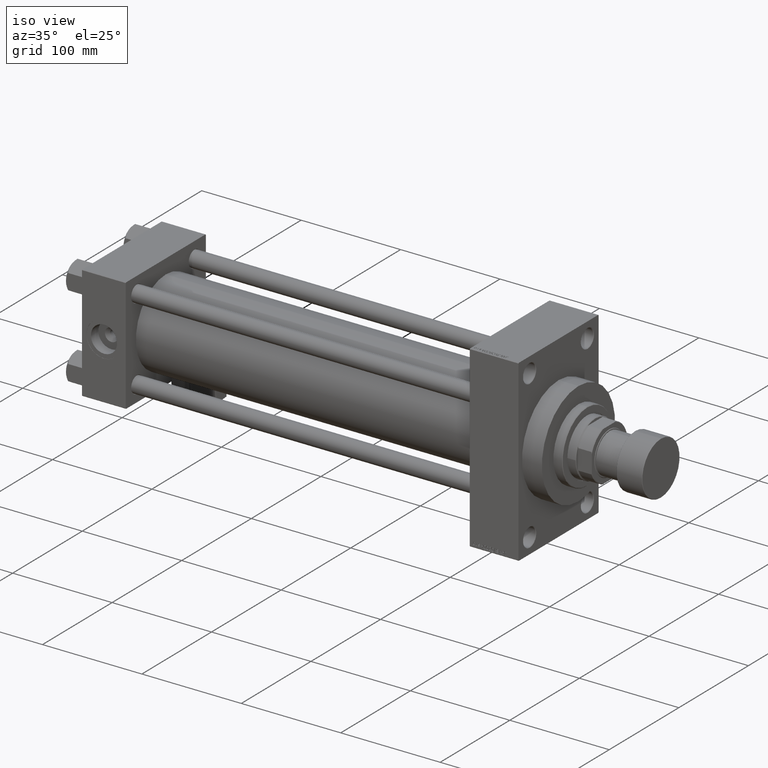
[diagram: clean part render]
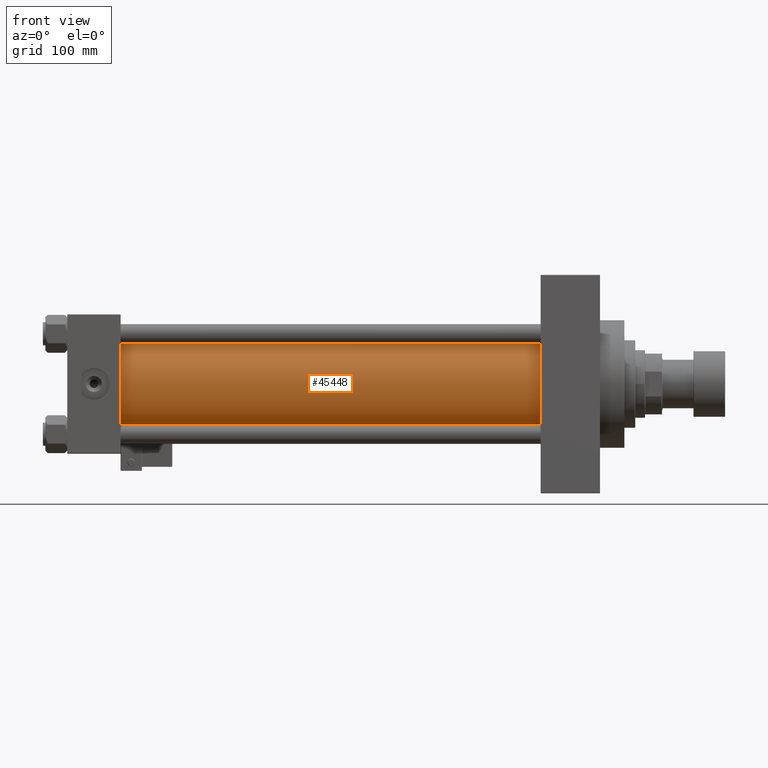
[diagram: tour spotlight — one face highlighted and labeled with its STEP entity id]
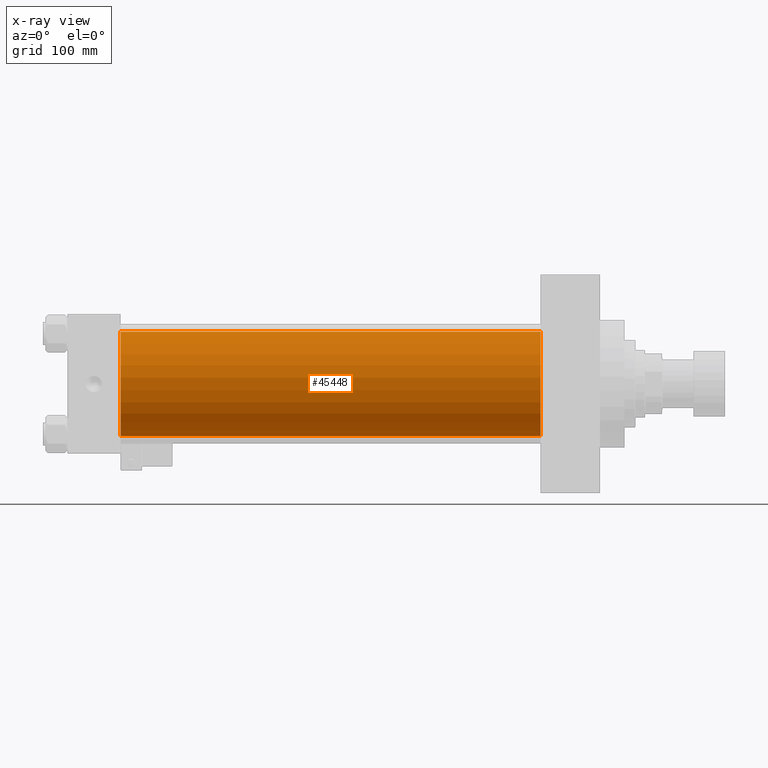
[diagram: x-ray of the same camera — body ghosted, this tour face saturated]
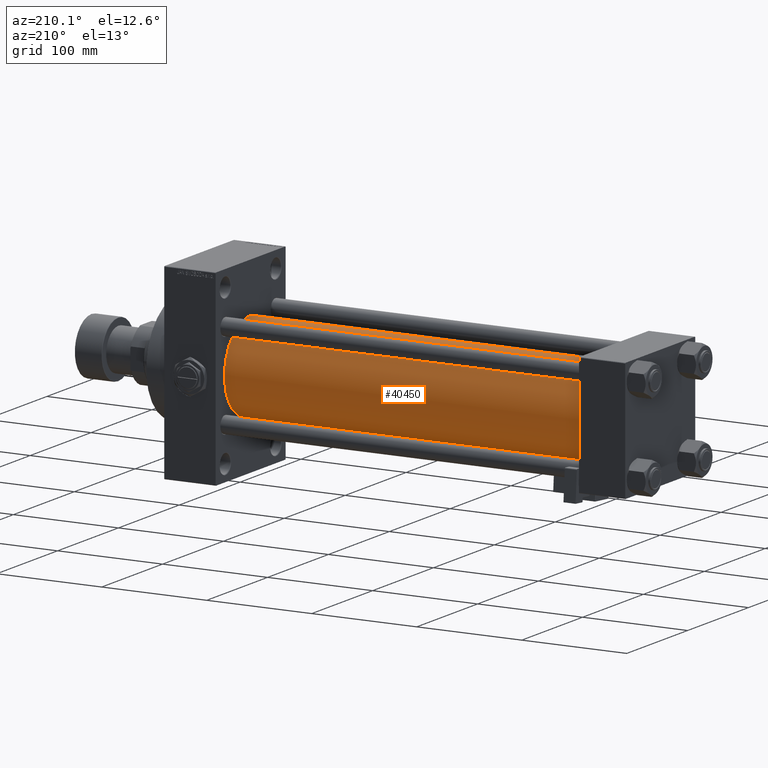
[diagram: tour spotlight — one face highlighted and labeled with its STEP entity id]
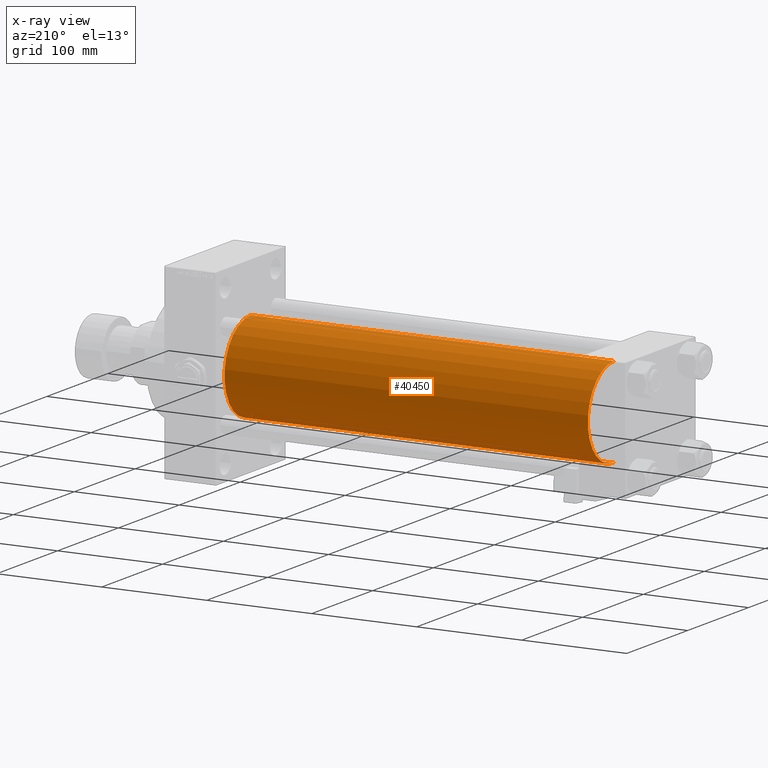
[diagram: x-ray of the same camera — body ghosted, this tour face saturated]
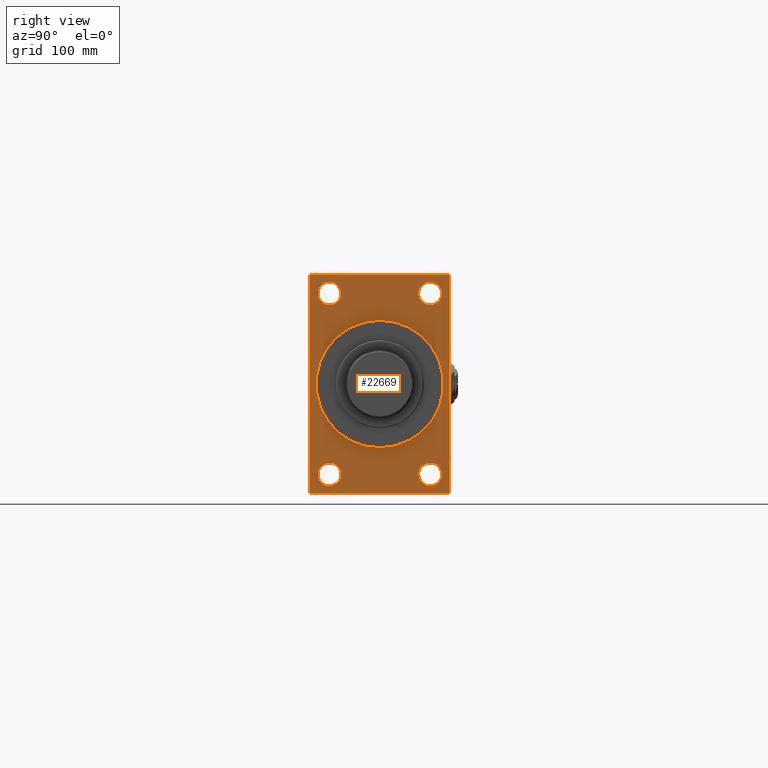
[diagram: tour spotlight — one face highlighted and labeled with its STEP entity id]
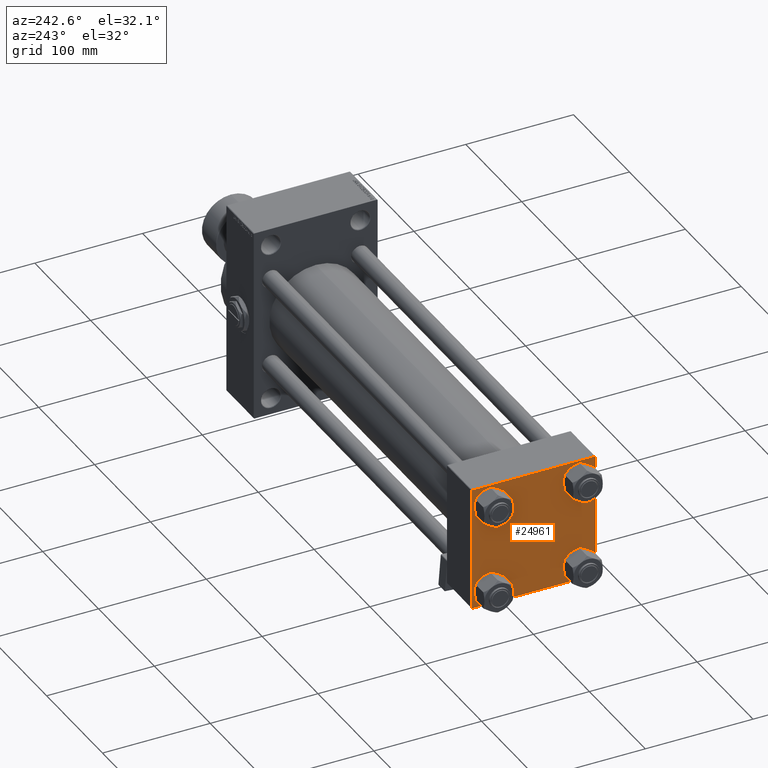
[diagram: tour spotlight — one face highlighted and labeled with its STEP entity id]
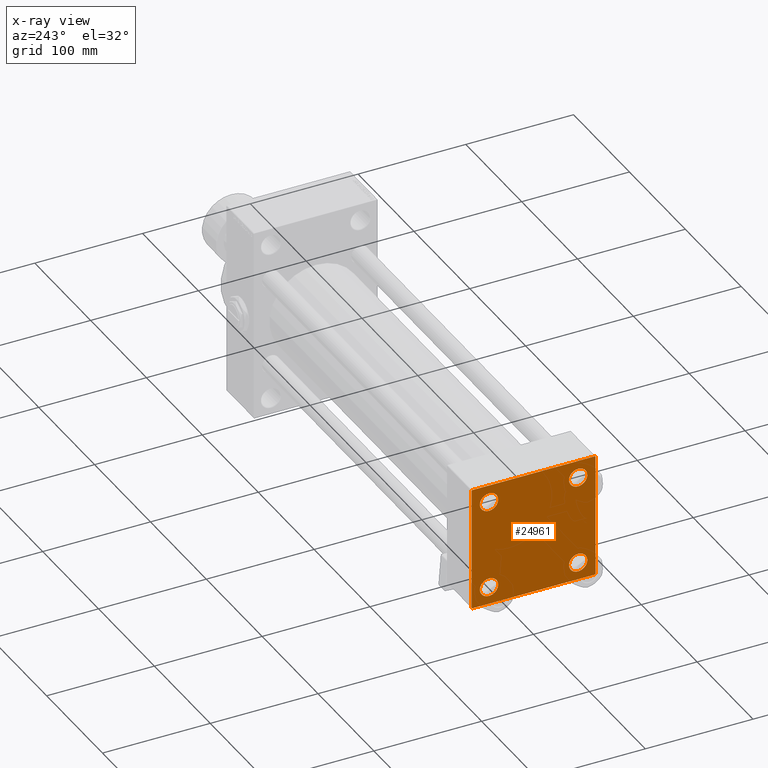
[diagram: x-ray of the same camera — body ghosted, this tour face saturated]
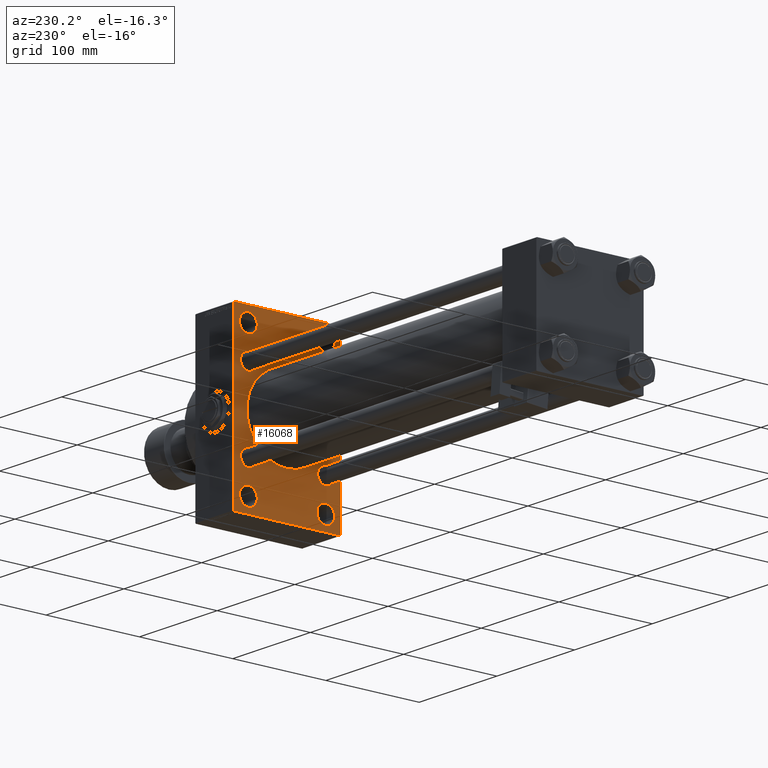
[diagram: tour spotlight — one face highlighted and labeled with its STEP entity id]
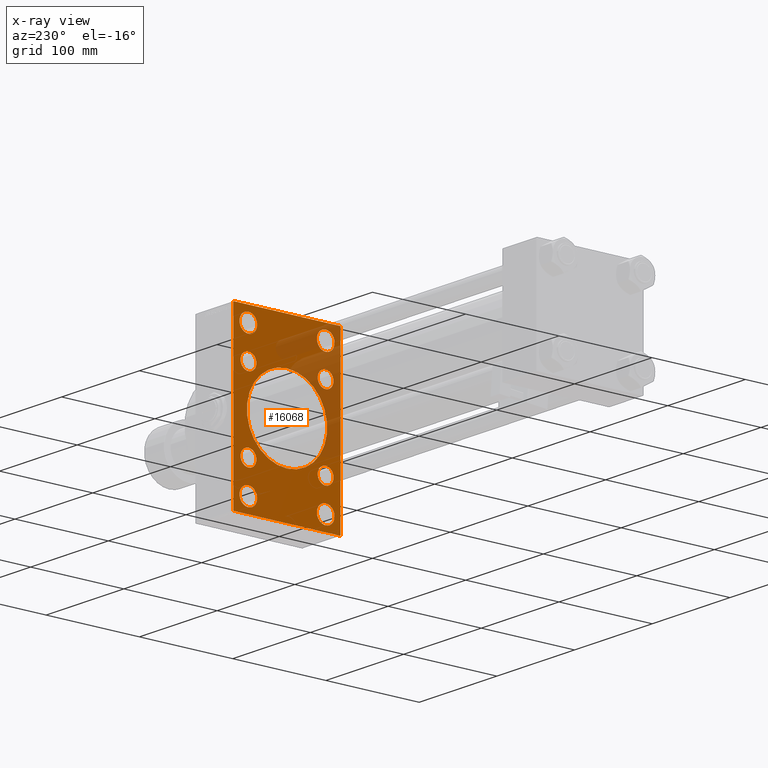
[diagram: x-ray of the same camera — body ghosted, this tour face saturated]
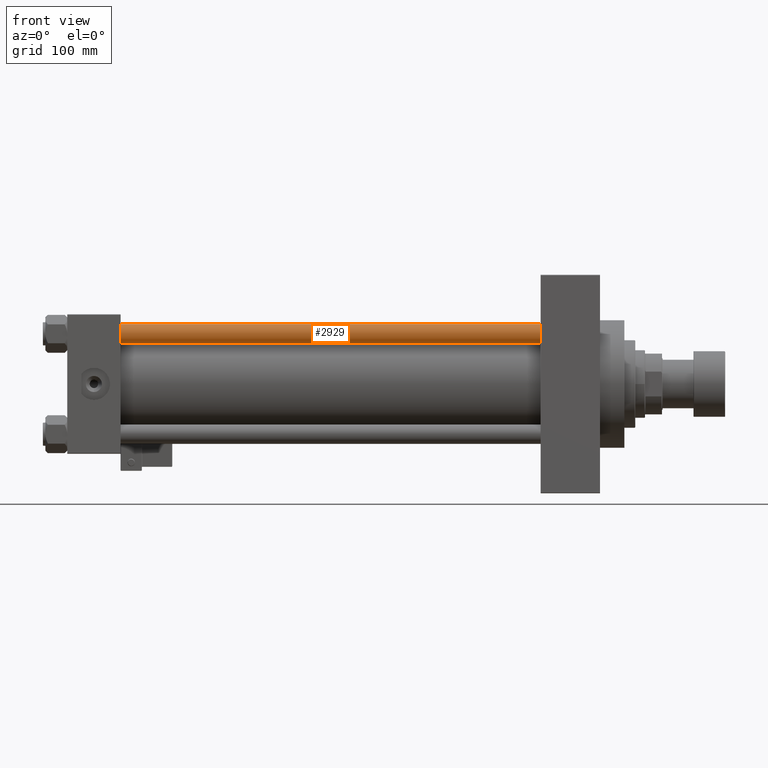
[diagram: tour spotlight — one face highlighted and labeled with its STEP entity id]
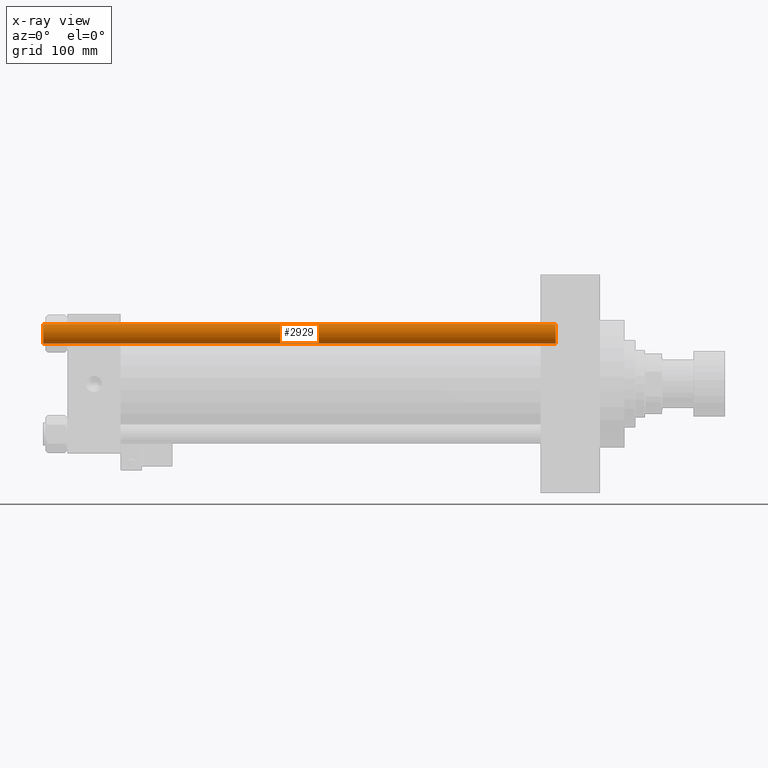
[diagram: x-ray of the same camera — body ghosted, this tour face saturated]
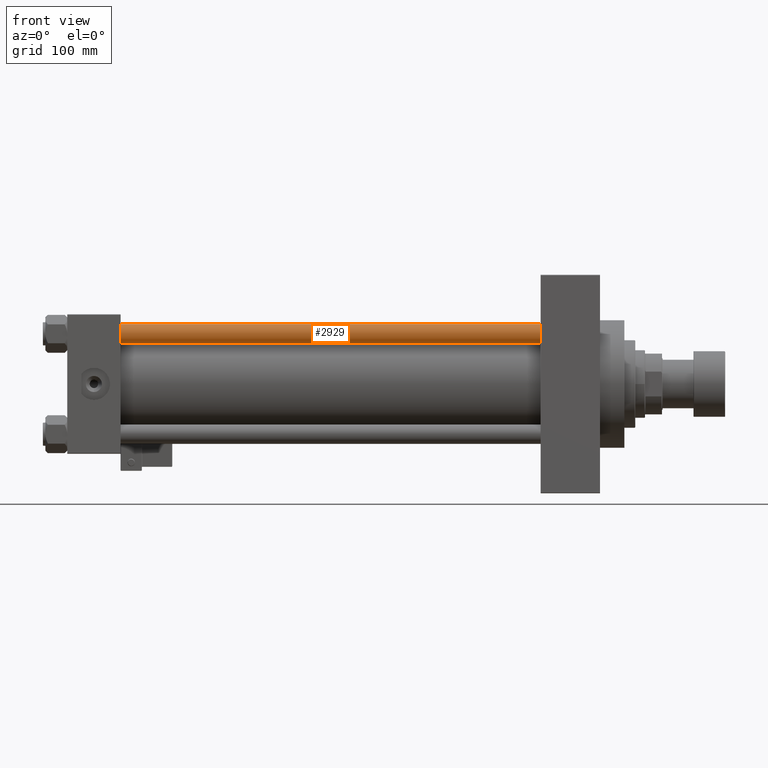
[diagram: tour spotlight — one face highlighted and labeled with its STEP entity id]
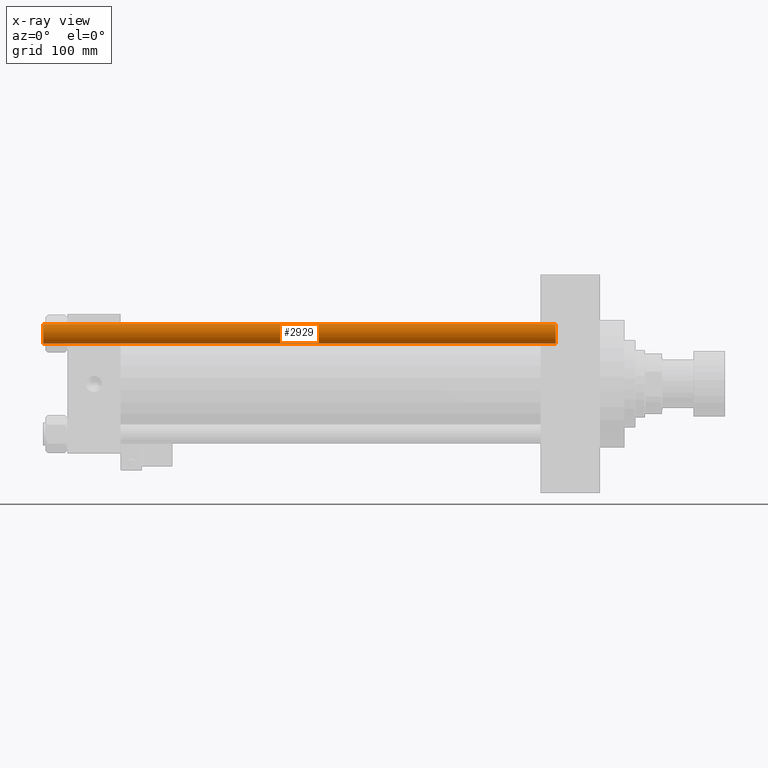
[diagram: x-ray of the same camera — body ghosted, this tour face saturated]
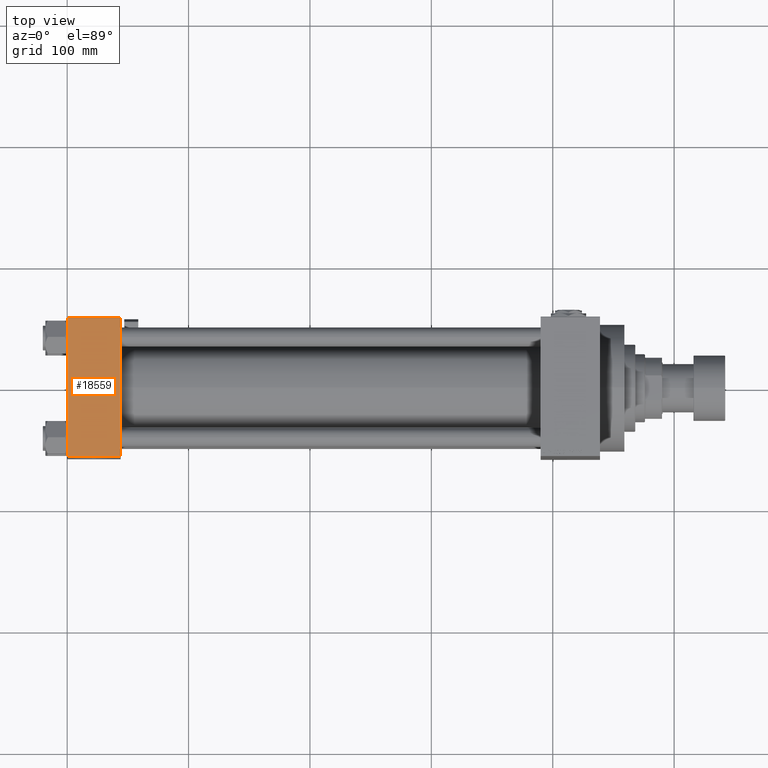
[diagram: tour spotlight — one face highlighted and labeled with its STEP entity id]
A machine part: a face-by-face anatomy tour. The part has 1282 B-rep faces; the first image is the clean iso view, then the 8 largest visible faces are spotlighted one at a time (largest first), each with its STEP entity span.

Face 1 — front view, entity #45448. An x-ray twin of the same camera follows (body ghosted, this face saturated) — the face is partly hidden behind the body. In plain terms, the highlighted cylindrical surface (partial cylindrical patch) has radius 43 mm, axis along (-1, -0, -0).
Definition (entity closure, byte-faithful):
#573 = CARTESIAN_POINT ( 'NONE',  ( 389.9999999999999432, -2.602085213965210642E-15, 0.000000000000000000 ) ) ;
#2841 = AXIS2_PLACEMENT_3D ( 'NONE', #573, #3981, #28597 ) ;
#3981 = DIRECTION ( 'NONE',  ( -1.000000000000000000, -0.000000000000000000, -0.000000000000000000 ) ) ;
#5141 = CARTESIAN_POINT ( 'NONE',  ( 43.99999999999998579, 2.663896022368408223E-15, -43.00000000000000000 ) ) ;
#7716 = AXIS2_PLACEMENT_3D ( 'NONE', #34743, #21900, #25830 ) ;
#10040 = DIRECTION ( 'NONE',  ( 0.000000000000000000, 0.000000000000000000, -1.000000000000000000 ) ) ;
#13238 = CARTESIAN_POINT ( 'NONE',  ( 389.9999999999999432, 2.663896022368408223E-15, -43.00000000000000000 ) ) ;
#13720 = EDGE_CURVE ( 'NONE', #18124, #14639, #20588, .T. ) ;
#14628 = VERTEX_POINT ( 'NONE', #28719 ) ;
#14639 = VERTEX_POINT ( 'NONE', #5141 ) ;
#14669 = CARTESIAN_POINT ( 'NONE',  ( 389.9999999999999432, 2.663896022368408223E-15, -43.00000000000000000 ) ) ;
#14837 = ORIENTED_EDGE ( 'NONE', *, *, #38207, .T. ) ;
#15201 = VECTOR ( 'NONE', #27627, 1000.000000000000000 ) ;
#18124 = VERTEX_POINT ( 'NONE', #14669 ) ;
#19219 = CARTESIAN_POINT ( 'NONE',  ( 43.99999999999998579, -2.602085213965210642E-15, 43.00000000000000000 ) ) ;
#20042 = EDGE_CURVE ( 'NONE', #14628, #25882, #27103, .T. ) ;
#20588 = LINE ( 'NONE', #13238, #39240 ) ;
#21103 = DIRECTION ( 'NONE',  ( -1.000000000000000000, -0.000000000000000000, -0.000000000000000000 ) ) ;
#21484 = EDGE_LOOP ( 'NONE', ( #50690, #44280, #40242, #14837 ) ) ;
#21900 = DIRECTION ( 'NONE',  ( 1.000000000000000000, -0.000000000000000000, 0.000000000000000000 ) ) ;
#25830 = DIRECTION ( 'NONE',  ( 0.000000000000000000, 0.000000000000000000, 1.000000000000000000 ) ) ;
#25882 = VERTEX_POINT ( 'NONE', #19219 ) ;
#27103 = LINE ( 'NONE', #47274, #15201 ) ;
#27627 = DIRECTION ( 'NONE',  ( -1.000000000000000000, -0.000000000000000000, -0.000000000000000000 ) ) ;
#28337 = FACE_OUTER_BOUND ( 'NONE', #21484, .T. ) ;
#28597 = DIRECTION ( 'NONE',  ( 0.000000000000000000, 0.000000000000000000, 1.000000000000000000 ) ) ;
#28719 = CARTESIAN_POINT ( 'NONE',  ( 389.9999999999999432, -2.602085213965210642E-15, 43.00000000000000000 ) ) ;
#34743 = CARTESIAN_POINT ( 'NONE',  ( 43.99999999999998579, -2.602085213965210642E-15, 0.000000000000000000 ) ) ;
#37009 = CIRCLE ( 'NONE', #7716, 43.00000000000000000 ) ;
#37194 = CIRCLE ( 'NONE', #41364, 43.00000000000000000 ) ;
#38207 = EDGE_CURVE ( 'NONE', #25882, #14639, #37009, .T. ) ;
#39240 = VECTOR ( 'NONE', #21103, 1000.000000000000000 ) ;
#40242 = ORIENTED_EDGE ( 'NONE', *, *, #20042, .T. ) ;
#41364 = AXIS2_PLACEMENT_3D ( 'NONE', #46178, #50106, #10040 ) ;
#44280 = ORIENTED_EDGE ( 'NONE', *, *, #46411, .F. ) ;
#44827 = CYLINDRICAL_SURFACE ( 'NONE', #2841, 43.00000000000000000 ) ;
#45448 = ADVANCED_FACE ( 'NONE', ( #28337 ), #44827, .T. ) ;
#46178 = CARTESIAN_POINT ( 'NONE',  ( 389.9999999999999432, -2.602085213965210642E-15, 0.000000000000000000 ) ) ;
#46411 = EDGE_CURVE ( 'NONE', #14628, #18124, #37194, .T. ) ;
#47274 = CARTESIAN_POINT ( 'NONE',  ( 389.9999999999999432, -2.602085213965210642E-15, 43.00000000000000000 ) ) ;
#50106 = DIRECTION ( 'NONE',  ( 1.000000000000000000, 0.000000000000000000, 0.000000000000000000 ) ) ;
#50690 = ORIENTED_EDGE ( 'NONE', *, *, #13720, .F. ) ;

Face 2 — auxiliary view, entity #40450. An x-ray twin of the same camera follows (body ghosted, this face saturated) — the face is partly hidden behind the body. In plain terms, the highlighted cylindrical surface (partial cylindrical patch) has radius 43 mm, axis along (-1, -0, -0).
Definition (entity closure, byte-faithful):
#327 = CYLINDRICAL_SURFACE ( 'NONE', #4347, 43.00000000000000000 ) ;
#847 = DIRECTION ( 'NONE',  ( -1.000000000000000000, -0.000000000000000000, -0.000000000000000000 ) ) ;
#3606 = CARTESIAN_POINT ( 'NONE',  ( 43.99999999999998579, -2.602085213965210642E-15, 0.000000000000000000 ) ) ;
#4347 = AXIS2_PLACEMENT_3D ( 'NONE', #9219, #847, #36235 ) ;
#5141 = CARTESIAN_POINT ( 'NONE',  ( 43.99999999999998579, 2.663896022368408223E-15, -43.00000000000000000 ) ) ;
#7665 = AXIS2_PLACEMENT_3D ( 'NONE', #3606, #35841, #31371 ) ;
#8748 = DIRECTION ( 'NONE',  ( 1.000000000000000000, 0.000000000000000000, 0.000000000000000000 ) ) ;
#9219 = CARTESIAN_POINT ( 'NONE',  ( 389.9999999999999432, -2.602085213965210642E-15, 0.000000000000000000 ) ) ;
#9685 = CIRCLE ( 'NONE', #12182, 43.00000000000000000 ) ;
#12074 = ORIENTED_EDGE ( 'NONE', *, *, #48912, .F. ) ;
#12182 = AXIS2_PLACEMENT_3D ( 'NONE', #44888, #8748, #40713 ) ;
#13238 = CARTESIAN_POINT ( 'NONE',  ( 389.9999999999999432, 2.663896022368408223E-15, -43.00000000000000000 ) ) ;
#13720 = EDGE_CURVE ( 'NONE', #18124, #14639, #20588, .T. ) ;
#14628 = VERTEX_POINT ( 'NONE', #28719 ) ;
#14639 = VERTEX_POINT ( 'NONE', #5141 ) ;
#14669 = CARTESIAN_POINT ( 'NONE',  ( 389.9999999999999432, 2.663896022368408223E-15, -43.00000000000000000 ) ) ;
#15201 = VECTOR ( 'NONE', #27627, 1000.000000000000000 ) ;
#18111 = EDGE_LOOP ( 'NONE', ( #12074, #44784, #28891, #41318 ) ) ;
#18124 = VERTEX_POINT ( 'NONE', #14669 ) ;
#19219 = CARTESIAN_POINT ( 'NONE',  ( 43.99999999999998579, -2.602085213965210642E-15, 43.00000000000000000 ) ) ;
#20042 = EDGE_CURVE ( 'NONE', #14628, #25882, #27103, .T. ) ;
#20588 = LINE ( 'NONE', #13238, #39240 ) ;
#21103 = DIRECTION ( 'NONE',  ( -1.000000000000000000, -0.000000000000000000, -0.000000000000000000 ) ) ;
#22467 = EDGE_CURVE ( 'NONE', #14639, #25882, #41943, .T. ) ;
#25882 = VERTEX_POINT ( 'NONE', #19219 ) ;
#27103 = LINE ( 'NONE', #47274, #15201 ) ;
#27627 = DIRECTION ( 'NONE',  ( -1.000000000000000000, -0.000000000000000000, -0.000000000000000000 ) ) ;
#28719 = CARTESIAN_POINT ( 'NONE',  ( 389.9999999999999432, -2.602085213965210642E-15, 43.00000000000000000 ) ) ;
#28891 = ORIENTED_EDGE ( 'NONE', *, *, #22467, .T. ) ;
#31371 = DIRECTION ( 'NONE',  ( 0.000000000000000000, 0.000000000000000000, 1.000000000000000000 ) ) ;
#35841 = DIRECTION ( 'NONE',  ( 1.000000000000000000, -0.000000000000000000, 0.000000000000000000 ) ) ;
#36235 = DIRECTION ( 'NONE',  ( 0.000000000000000000, 0.000000000000000000, 1.000000000000000000 ) ) ;
#39240 = VECTOR ( 'NONE', #21103, 1000.000000000000000 ) ;
#40450 = ADVANCED_FACE ( 'NONE', ( #48780 ), #327, .T. ) ;
#40713 = DIRECTION ( 'NONE',  ( 0.000000000000000000, 0.000000000000000000, -1.000000000000000000 ) ) ;
#41318 = ORIENTED_EDGE ( 'NONE', *, *, #20042, .F. ) ;
#41943 = CIRCLE ( 'NONE', #7665, 43.00000000000000000 ) ;
#44784 = ORIENTED_EDGE ( 'NONE', *, *, #13720, .T. ) ;
#44888 = CARTESIAN_POINT ( 'NONE',  ( 389.9999999999999432, -2.602085213965210642E-15, 0.000000000000000000 ) ) ;
#47274 = CARTESIAN_POINT ( 'NONE',  ( 389.9999999999999432, -2.602085213965210642E-15, 43.00000000000000000 ) ) ;
#48780 = FACE_OUTER_BOUND ( 'NONE', #18111, .T. ) ;
#48912 = EDGE_CURVE ( 'NONE', #18124, #14628, #9685, .T. ) ;

Face 3 — right view, entity #22669. In plain terms, the highlighted planar face has unit normal (-1, 0, 0).
Definition (entity closure, byte-faithful):
#677 = CARTESIAN_POINT ( 'NONE',  ( 438.9999999999999432, 0.000000000000000000, 0.000000000000000000 ) ) ;
#798 = CARTESIAN_POINT ( 'NONE',  ( 438.9999999999999432, 57.50000000000000000, -89.50000000000005684 ) ) ;
#1159 = DIRECTION ( 'NONE',  ( -1.000000000000000000, -0.000000000000000000, -0.000000000000000000 ) ) ;
#1201 = DIRECTION ( 'NONE',  ( 0.000000000000000000, 0.000000000000000000, 1.000000000000000000 ) ) ;
#1221 = EDGE_CURVE ( 'NONE', #1975, #18583, #22802, .T. ) ;
#1476 = CIRCLE ( 'NONE', #48317, 9.499999999999896971 ) ;
#1975 = VERTEX_POINT ( 'NONE', #31059 ) ;
#2401 = VERTEX_POINT ( 'NONE', #12048 ) ;
#2984 = LINE ( 'NONE', #7163, #10703 ) ;
#3021 = FACE_BOUND ( 'NONE', #30180, .T. ) ;
#3149 = EDGE_CURVE ( 'NONE', #40998, #14880, #17211, .T. ) ;
#3323 = ORIENTED_EDGE ( 'NONE', *, *, #8922, .F. ) ;
#3427 = EDGE_CURVE ( 'NONE', #18583, #36423, #14230, .T. ) ;
#4924 = CIRCLE ( 'NONE', #18293, 52.50000000000000000 ) ;
#5485 = LINE ( 'NONE', #25392, #24427 ) ;
#5589 = CARTESIAN_POINT ( 'NONE',  ( 438.9999999999999432, -41.50000000000000711, -74.49999999999998579 ) ) ;
#6180 = FACE_BOUND ( 'NONE', #41008, .T. ) ;
#6430 = AXIS2_PLACEMENT_3D ( 'NONE', #677, #16639, #51487 ) ;
#6555 = DIRECTION ( 'NONE',  ( -0.000000000000000000, -0.7071067811865474617, -0.7071067811865474617 ) ) ;
#6638 = ORIENTED_EDGE ( 'NONE', *, *, #35954, .T. ) ;
#6889 = DIRECTION ( 'NONE',  ( 0.000000000000000000, 0.000000000000000000, -1.000000000000000000 ) ) ;
#7149 = CARTESIAN_POINT ( 'NONE',  ( 438.9999999999999432, -57.50000000000000000, 90.00000000000000000 ) ) ;
#7163 = CARTESIAN_POINT ( 'NONE',  ( 438.9999999999999432, 57.50000000000000000, 90.00000000000000000 ) ) ;
#7181 = AXIS2_PLACEMENT_3D ( 'NONE', #8259, #36559, #16881 ) ;
#7492 = EDGE_CURVE ( 'NONE', #46500, #46610, #1476, .T. ) ;
#8214 = ORIENTED_EDGE ( 'NONE', *, *, #29159, .T. ) ;
#8256 = CARTESIAN_POINT ( 'NONE',  ( 438.9999999999999432, 57.00000000000005684, -90.00000000000000000 ) ) ;
#8259 = CARTESIAN_POINT ( 'NONE',  ( 438.9999999999999432, -41.50000000000000711, -74.49999999999998579 ) ) ;
#8448 = CARTESIAN_POINT ( 'NONE',  ( 438.9999999999999432, 57.50000000000000000, -90.00000000000000000 ) ) ;
#8614 = VERTEX_POINT ( 'NONE', #43443 ) ;
#8797 = CARTESIAN_POINT ( 'NONE',  ( 438.9999999999999432, 41.49999999999999289, -83.99999999999988631 ) ) ;
#8922 = EDGE_CURVE ( 'NONE', #30230, #10705, #42090, .T. ) ;
#8991 = EDGE_CURVE ( 'NONE', #2401, #25986, #20689, .T. ) ;
#9093 = VECTOR ( 'NONE', #47996, 1000.000000000000000 ) ;
#9159 = CARTESIAN_POINT ( 'NONE',  ( 438.9999999999999432, -41.50000000000000711, 74.50000000000001421 ) ) ;
#9268 = CIRCLE ( 'NONE', #37003, 9.499999999999896971 ) ;
#9282 = CIRCLE ( 'NONE', #37760, 9.499999999999896971 ) ;
#9315 = ORIENTED_EDGE ( 'NONE', *, *, #3149, .T. ) ;
#9680 = DIRECTION ( 'NONE',  ( 0.000000000000000000, 0.000000000000000000, 1.000000000000000000 ) ) ;
#9811 = VERTEX_POINT ( 'NONE', #23229 ) ;
#10565 = VECTOR ( 'NONE', #28567, 1000.000000000000114 ) ;
#10703 = VECTOR ( 'NONE', #19476, 1000.000000000000000 ) ;
#10705 = VERTEX_POINT ( 'NONE', #20676 ) ;
#11669 = ORIENTED_EDGE ( 'NONE', *, *, #28087, .F. ) ;
#12048 = CARTESIAN_POINT ( 'NONE',  ( 438.9999999999999432, 0.000000000000000000, 52.50000000000000000 ) ) ;
#12289 = VECTOR ( 'NONE', #6555, 1000.000000000000114 ) ;
#12359 = EDGE_CURVE ( 'NONE', #27061, #16523, #44597, .T. ) ;
#12418 = VECTOR ( 'NONE', #41512, 1000.000000000000114 ) ;
#12613 = CARTESIAN_POINT ( 'NONE',  ( 438.9999999999999432, -41.50000000000000711, 83.99999999999991473 ) ) ;
#12634 = AXIS2_PLACEMENT_3D ( 'NONE', #26067, #42040, #18972 ) ;
#12764 = ORIENTED_EDGE ( 'NONE', *, *, #16895, .T. ) ;
#12922 = CIRCLE ( 'NONE', #18751, 9.499999999999896971 ) ;
#13191 = CARTESIAN_POINT ( 'NONE',  ( 438.9999999999999432, -41.50000000000000711, 74.50000000000001421 ) ) ;
#13488 = ORIENTED_EDGE ( 'NONE', *, *, #12359, .F. ) ;
#13597 = DIRECTION ( 'NONE',  ( 0.000000000000000000, -0.7071067811865082708, 0.7071067811865867636 ) ) ;
#13734 = ORIENTED_EDGE ( 'NONE', *, *, #38371, .T. ) ;
#14230 = LINE ( 'NONE', #7149, #45664 ) ;
#14277 = CARTESIAN_POINT ( 'NONE',  ( 438.9999999999999432, 0.000000000000000000, 0.000000000000000000 ) ) ;
#14372 = AXIS2_PLACEMENT_3D ( 'NONE', #14277, #34478, #18989 ) ;
#14880 = VERTEX_POINT ( 'NONE', #36786 ) ;
#15683 = VERTEX_POINT ( 'NONE', #8797 ) ;
#15701 = CARTESIAN_POINT ( 'NONE',  ( 438.9999999999999432, 41.49999999999999289, 65.00000000000011369 ) ) ;
#15922 = CIRCLE ( 'NONE', #36852, 9.499999999999896971 ) ;
#16112 = CARTESIAN_POINT ( 'NONE',  ( 438.9999999999999432, 0.000000000000000000, 0.000000000000000000 ) ) ;
#16523 = VERTEX_POINT ( 'NONE', #19822 ) ;
#16639 = DIRECTION ( 'NONE',  ( 1.000000000000000000, 0.000000000000000000, 0.000000000000000000 ) ) ;
#16881 = DIRECTION ( 'NONE',  ( 0.000000000000000000, 0.000000000000000000, 1.000000000000000000 ) ) ;
#16895 = EDGE_CURVE ( 'NONE', #14880, #40998, #15922, .T. ) ;
#17211 = CIRCLE ( 'NONE', #7181, 9.499999999999896971 ) ;
#17416 = VERTEX_POINT ( 'NONE', #15701 ) ;
#17778 = AXIS2_PLACEMENT_3D ( 'NONE', #44385, #1159, #32360 ) ;
#18218 = FACE_BOUND ( 'NONE', #49946, .T. ) ;
#18293 = AXIS2_PLACEMENT_3D ( 'NONE', #16112, #48330, #45172 ) ;
#18466 = PLANE ( 'NONE',  #14372 ) ;
#18583 = VERTEX_POINT ( 'NONE', #35374 ) ;
#18751 = AXIS2_PLACEMENT_3D ( 'NONE', #39309, #30925, #18863 ) ;
#18863 = DIRECTION ( 'NONE',  ( 0.000000000000000000, 0.000000000000000000, 1.000000000000000000 ) ) ;
#18972 = DIRECTION ( 'NONE',  ( 0.000000000000000000, 0.000000000000000000, 1.000000000000000000 ) ) ;
#18989 = DIRECTION ( 'NONE',  ( -0.000000000000000000, 0.000000000000000000, 1.000000000000000000 ) ) ;
#19476 = DIRECTION ( 'NONE',  ( 0.000000000000000000, -1.000000000000000000, 0.000000000000000000 ) ) ;
#19644 = CARTESIAN_POINT ( 'NONE',  ( 438.9999999999999432, -57.50000000000000000, 89.50000000000005684 ) ) ;
#19822 = CARTESIAN_POINT ( 'NONE',  ( 438.9999999999999432, -57.00000000000011369, -90.00000000000000000 ) ) ;
#20167 = EDGE_CURVE ( 'NONE', #46610, #46500, #9268, .T. ) ;
#20676 = CARTESIAN_POINT ( 'NONE',  ( 438.9999999999999432, 57.50000000000000000, -89.50000000000000000 ) ) ;
#20689 = CIRCLE ( 'NONE', #6430, 52.50000000000000000 ) ;
#21053 = DIRECTION ( 'NONE',  ( -1.000000000000000000, -0.000000000000000000, -0.000000000000000000 ) ) ;
#21098 = CIRCLE ( 'NONE', #17778, 9.499999999999896971 ) ;
#21841 = ORIENTED_EDGE ( 'NONE', *, *, #30995, .T. ) ;
#21862 = LINE ( 'NONE', #46461, #12418 ) ;
#22669 = ADVANCED_FACE ( 'NONE', ( #6180, #18218, #34227, #38911, #3021, #22924 ), #18466, .F. ) ;
#22802 = LINE ( 'NONE', #19644, #12289 ) ;
#22924 = FACE_OUTER_BOUND ( 'NONE', #33554, .T. ) ;
#23159 = ORIENTED_EDGE ( 'NONE', *, *, #35909, .T. ) ;
#23229 = CARTESIAN_POINT ( 'NONE',  ( 438.9999999999999432, 41.49999999999999289, 83.99999999999991473 ) ) ;
#24376 = LINE ( 'NONE', #798, #10565 ) ;
#24427 = VECTOR ( 'NONE', #13597, 1000.000000000000114 ) ;
#25392 = CARTESIAN_POINT ( 'NONE',  ( 438.9999999999999432, 57.00000000000011369, 90.00000000000000000 ) ) ;
#25986 = VERTEX_POINT ( 'NONE', #40173 ) ;
#26067 = CARTESIAN_POINT ( 'NONE',  ( 438.9999999999999432, 41.49999999999999289, 74.50000000000001421 ) ) ;
#27061 = VERTEX_POINT ( 'NONE', #8256 ) ;
#28087 = EDGE_CURVE ( 'NONE', #25986, #2401, #4924, .T. ) ;
#28495 = CARTESIAN_POINT ( 'NONE',  ( 438.9999999999999432, -41.50000000000000711, -65.00000000000008527 ) ) ;
#28567 = DIRECTION ( 'NONE',  ( -0.000000000000000000, 0.7071067811865474617, 0.7071067811865474617 ) ) ;
#29159 = EDGE_CURVE ( 'NONE', #32759, #1975, #2984, .T. ) ;
#30180 = EDGE_LOOP ( 'NONE', ( #47283, #11669 ) ) ;
#30230 = VERTEX_POINT ( 'NONE', #35930 ) ;
#30306 = DIRECTION ( 'NONE',  ( 0.000000000000000000, 0.000000000000000000, -1.000000000000000000 ) ) ;
#30925 = DIRECTION ( 'NONE',  ( -1.000000000000000000, -0.000000000000000000, -0.000000000000000000 ) ) ;
#30995 = EDGE_CURVE ( 'NONE', #36423, #16523, #21862, .T. ) ;
#31059 = CARTESIAN_POINT ( 'NONE',  ( 438.9999999999999432, -57.00000000000005684, 90.00000000000000000 ) ) ;
#31086 = CARTESIAN_POINT ( 'NONE',  ( 438.9999999999999432, 57.00000000000011369, 90.00000000000000000 ) ) ;
#31808 = ORIENTED_EDGE ( 'NONE', *, *, #50491, .T. ) ;
#32360 = DIRECTION ( 'NONE',  ( 0.000000000000000000, 0.000000000000000000, 1.000000000000000000 ) ) ;
#32759 = VERTEX_POINT ( 'NONE', #31086 ) ;
#33128 = DIRECTION ( 'NONE',  ( 0.000000000000000000, 0.000000000000000000, 1.000000000000000000 ) ) ;
#33358 = EDGE_LOOP ( 'NONE', ( #38353, #6638 ) ) ;
#33554 = EDGE_LOOP ( 'NONE', ( #36572, #21841, #13488, #31808, #3323, #38598, #8214, #43819 ) ) ;
#34206 = DIRECTION ( 'NONE',  ( -1.000000000000000000, -0.000000000000000000, -0.000000000000000000 ) ) ;
#34227 = FACE_BOUND ( 'NONE', #37029, .T. ) ;
#34478 = DIRECTION ( 'NONE',  ( -1.000000000000000000, 0.000000000000000000, -0.000000000000000000 ) ) ;
#35374 = CARTESIAN_POINT ( 'NONE',  ( 438.9999999999999432, -57.50000000000000000, 89.50000000000005684 ) ) ;
#35909 = EDGE_CURVE ( 'NONE', #8614, #15683, #9282, .T. ) ;
#35930 = CARTESIAN_POINT ( 'NONE',  ( 438.9999999999999432, 57.50000000000000000, 89.50000000000005684 ) ) ;
#35954 = EDGE_CURVE ( 'NONE', #9811, #17416, #51111, .T. ) ;
#36210 = CARTESIAN_POINT ( 'NONE',  ( 438.9999999999999432, -57.50000000000000000, -89.50000000000000000 ) ) ;
#36423 = VERTEX_POINT ( 'NONE', #36210 ) ;
#36559 = DIRECTION ( 'NONE',  ( -1.000000000000000000, -0.000000000000000000, -0.000000000000000000 ) ) ;
#36572 = ORIENTED_EDGE ( 'NONE', *, *, #3427, .T. ) ;
#36596 = VECTOR ( 'NONE', #30306, 1000.000000000000000 ) ;
#36786 = CARTESIAN_POINT ( 'NONE',  ( 438.9999999999999432, -41.50000000000000711, -83.99999999999988631 ) ) ;
#36852 = AXIS2_PLACEMENT_3D ( 'NONE', #5589, #37560, #40449 ) ;
#37003 = AXIS2_PLACEMENT_3D ( 'NONE', #13191, #21053, #33128 ) ;
#37029 = EDGE_LOOP ( 'NONE', ( #13734, #23159 ) ) ;
#37108 = CARTESIAN_POINT ( 'NONE',  ( 438.9999999999999432, 41.49999999999999289, -74.49999999999998579 ) ) ;
#37208 = DIRECTION ( 'NONE',  ( -1.000000000000000000, -0.000000000000000000, -0.000000000000000000 ) ) ;
#37560 = DIRECTION ( 'NONE',  ( -1.000000000000000000, -0.000000000000000000, -0.000000000000000000 ) ) ;
#37760 = AXIS2_PLACEMENT_3D ( 'NONE', #37108, #34206, #1201 ) ;
#38353 = ORIENTED_EDGE ( 'NONE', *, *, #46742, .T. ) ;
#38371 = EDGE_CURVE ( 'NONE', #15683, #8614, #21098, .T. ) ;
#38598 = ORIENTED_EDGE ( 'NONE', *, *, #39981, .T. ) ;
#38911 = FACE_BOUND ( 'NONE', #33358, .T. ) ;
#39309 = CARTESIAN_POINT ( 'NONE',  ( 438.9999999999999432, 41.49999999999999289, 74.50000000000001421 ) ) ;
#39981 = EDGE_CURVE ( 'NONE', #30230, #32759, #5485, .T. ) ;
#40173 = CARTESIAN_POINT ( 'NONE',  ( 438.9999999999999432, 6.429395695523603956E-15, -52.50000000000000000 ) ) ;
#40449 = DIRECTION ( 'NONE',  ( 0.000000000000000000, 0.000000000000000000, 1.000000000000000000 ) ) ;
#40998 = VERTEX_POINT ( 'NONE', #28495 ) ;
#41008 = EDGE_LOOP ( 'NONE', ( #48769, #47302 ) ) ;
#41512 = DIRECTION ( 'NONE',  ( 0.000000000000000000, 0.7071067811865082708, -0.7071067811865867636 ) ) ;
#42040 = DIRECTION ( 'NONE',  ( -1.000000000000000000, -0.000000000000000000, -0.000000000000000000 ) ) ;
#42090 = LINE ( 'NONE', #50204, #36596 ) ;
#43443 = CARTESIAN_POINT ( 'NONE',  ( 438.9999999999999432, 41.49999999999999289, -65.00000000000008527 ) ) ;
#43819 = ORIENTED_EDGE ( 'NONE', *, *, #1221, .T. ) ;
#44385 = CARTESIAN_POINT ( 'NONE',  ( 438.9999999999999432, 41.49999999999999289, -74.49999999999998579 ) ) ;
#44597 = LINE ( 'NONE', #8448, #9093 ) ;
#45172 = DIRECTION ( 'NONE',  ( 0.000000000000000000, 0.000000000000000000, -1.000000000000000000 ) ) ;
#45664 = VECTOR ( 'NONE', #6889, 1000.000000000000000 ) ;
#46461 = CARTESIAN_POINT ( 'NONE',  ( 438.9999999999999432, -57.00000000000011369, -90.00000000000000000 ) ) ;
#46500 = VERTEX_POINT ( 'NONE', #47988 ) ;
#46610 = VERTEX_POINT ( 'NONE', #12613 ) ;
#46742 = EDGE_CURVE ( 'NONE', #17416, #9811, #12922, .T. ) ;
#47283 = ORIENTED_EDGE ( 'NONE', *, *, #8991, .F. ) ;
#47302 = ORIENTED_EDGE ( 'NONE', *, *, #20167, .T. ) ;
#47988 = CARTESIAN_POINT ( 'NONE',  ( 438.9999999999999432, -41.50000000000000711, 65.00000000000011369 ) ) ;
#47996 = DIRECTION ( 'NONE',  ( 0.000000000000000000, -1.000000000000000000, 0.000000000000000000 ) ) ;
#48317 = AXIS2_PLACEMENT_3D ( 'NONE', #9159, #37208, #9680 ) ;
#48330 = DIRECTION ( 'NONE',  ( 1.000000000000000000, 0.000000000000000000, 0.000000000000000000 ) ) ;
#48769 = ORIENTED_EDGE ( 'NONE', *, *, #7492, .T. ) ;
#49946 = EDGE_LOOP ( 'NONE', ( #12764, #9315 ) ) ;
#50204 = CARTESIAN_POINT ( 'NONE',  ( 438.9999999999999432, 57.50000000000000000, 90.00000000000000000 ) ) ;
#50491 = EDGE_CURVE ( 'NONE', #27061, #10705, #24376, .T. ) ;
#51111 = CIRCLE ( 'NONE', #12634, 9.499999999999896971 ) ;
#51487 = DIRECTION ( 'NONE',  ( 0.000000000000000000, 0.000000000000000000, -1.000000000000000000 ) ) ;

Face 4 — auxiliary view, entity #24961. An x-ray twin of the same camera follows (body ghosted, this face saturated) — the face is partly hidden behind the body. In plain terms, the highlighted planar face has unit normal (-1, 0, 0).
Definition (entity closure, byte-faithful):
#14 = VERTEX_POINT ( 'NONE', #47696 ) ;
#471 = CARTESIAN_POINT ( 'NONE',  ( 0.000000000000000000, -57.24999999999962341, -57.25000000000041211 ) ) ;
#1012 = DIRECTION ( 'NONE',  ( 0.000000000000000000, 0.000000000000000000, 1.000000000000000000 ) ) ;
#1626 = EDGE_LOOP ( 'NONE', ( #44970, #43439 ) ) ;
#1735 = CIRCLE ( 'NONE', #41851, 8.499999999999992895 ) ;
#2980 = FACE_OUTER_BOUND ( 'NONE', #36494, .T. ) ;
#3116 = LINE ( 'NONE', #39528, #51748 ) ;
#3387 = VERTEX_POINT ( 'NONE', #18938 ) ;
#3558 = VERTEX_POINT ( 'NONE', #25457 ) ;
#4842 = DIRECTION ( 'NONE',  ( 0.000000000000000000, -1.000000000000000000, -1.206764157201257291E-16 ) ) ;
#4900 = ORIENTED_EDGE ( 'NONE', *, *, #13392, .F. ) ;
#4911 = ORIENTED_EDGE ( 'NONE', *, *, #6664, .T. ) ;
#5054 = VERTEX_POINT ( 'NONE', #34616 ) ;
#5188 = CARTESIAN_POINT ( 'NONE',  ( 0.000000000000000000, -41.34999999999998721, 49.85000000000000142 ) ) ;
#5284 = AXIS2_PLACEMENT_3D ( 'NONE', #34548, #42896, #7008 ) ;
#6321 = ORIENTED_EDGE ( 'NONE', *, *, #33900, .T. ) ;
#6481 = ORIENTED_EDGE ( 'NONE', *, *, #20997, .T. ) ;
#6601 = VECTOR ( 'NONE', #24841, 1000.000000000000000 ) ;
#6664 = EDGE_CURVE ( 'NONE', #24758, #28711, #44908, .T. ) ;
#6699 = EDGE_CURVE ( 'NONE', #33359, #14, #30707, .T. ) ;
#6751 = CIRCLE ( 'NONE', #7622, 8.499999999999992895 ) ;
#6892 = EDGE_CURVE ( 'NONE', #28947, #29969, #38514, .T. ) ;
#7008 = DIRECTION ( 'NONE',  ( 0.000000000000000000, 0.000000000000000000, 1.000000000000000000 ) ) ;
#7159 = DIRECTION ( 'NONE',  ( -1.000000000000000000, 0.000000000000000000, -0.000000000000000000 ) ) ;
#7186 = EDGE_CURVE ( 'NONE', #5054, #13869, #43304, .T. ) ;
#7622 = AXIS2_PLACEMENT_3D ( 'NONE', #36034, #16099, #12170 ) ;
#8576 = CIRCLE ( 'NONE', #41994, 8.499999999999992895 ) ;
#8592 = LINE ( 'NONE', #471, #39957 ) ;
#8782 = VERTEX_POINT ( 'NONE', #5188 ) ;
#9542 = CARTESIAN_POINT ( 'NONE',  ( 0.000000000000000000, 41.34999999999999432, -41.34999999999999432 ) ) ;
#9692 = ORIENTED_EDGE ( 'NONE', *, *, #33561, .T. ) ;
#9913 = DIRECTION ( 'NONE',  ( 0.000000000000000000, 0.000000000000000000, 1.000000000000000000 ) ) ;
#10324 = VERTEX_POINT ( 'NONE', #36728 ) ;
#10408 = ORIENTED_EDGE ( 'NONE', *, *, #12210, .T. ) ;
#10698 = AXIS2_PLACEMENT_3D ( 'NONE', #24687, #20491, #36490 ) ;
#12170 = DIRECTION ( 'NONE',  ( 0.000000000000000000, 0.000000000000000000, 1.000000000000000000 ) ) ;
#12210 = EDGE_CURVE ( 'NONE', #28711, #10324, #20033, .T. ) ;
#13040 = CARTESIAN_POINT ( 'NONE',  ( 0.000000000000000000, 57.50000000000000000, 57.50000000000001421 ) ) ;
#13206 = CARTESIAN_POINT ( 'NONE',  ( 0.000000000000000000, 57.50000000000000000, -57.49999999999999289 ) ) ;
#13283 = DIRECTION ( 'NONE',  ( 0.000000000000000000, 0.000000000000000000, -1.000000000000000000 ) ) ;
#13392 = EDGE_CURVE ( 'NONE', #28431, #18166, #36904, .T. ) ;
#13869 = VERTEX_POINT ( 'NONE', #46736 ) ;
#13927 = CARTESIAN_POINT ( 'NONE',  ( 0.000000000000000000, 57.00000000000001421, 57.50000000000001421 ) ) ;
#14151 = DIRECTION ( 'NONE',  ( 0.000000000000000000, 6.033820786006285224E-17, -1.000000000000000000 ) ) ;
#14341 = CIRCLE ( 'NONE', #33642, 8.499999999999992895 ) ;
#16071 = CARTESIAN_POINT ( 'NONE',  ( 0.000000000000000000, 41.34999999999999432, 32.85000000000000142 ) ) ;
#16099 = DIRECTION ( 'NONE',  ( 1.000000000000000000, -0.000000000000000000, 0.000000000000000000 ) ) ;
#17217 = LINE ( 'NONE', #49178, #50042 ) ;
#17242 = CARTESIAN_POINT ( 'NONE',  ( 0.000000000000000000, 41.34999999999999432, 41.34999999999999432 ) ) ;
#17244 = LINE ( 'NONE', #48941, #35142 ) ;
#17655 = DIRECTION ( 'NONE',  ( 0.000000000000000000, 0.000000000000000000, 1.000000000000000000 ) ) ;
#18166 = VERTEX_POINT ( 'NONE', #39310 ) ;
#18707 = DIRECTION ( 'NONE',  ( 1.000000000000000000, -0.000000000000000000, 0.000000000000000000 ) ) ;
#18938 = CARTESIAN_POINT ( 'NONE',  ( 0.000000000000000000, -41.34999999999998721, 32.85000000000000853 ) ) ;
#18949 = FACE_BOUND ( 'NONE', #30377, .T. ) ;
#19268 = EDGE_LOOP ( 'NONE', ( #6321, #29001 ) ) ;
#19632 = EDGE_CURVE ( 'NONE', #8782, #3387, #14341, .T. ) ;
#20033 = LINE ( 'NONE', #13206, #43374 ) ;
#20381 = ORIENTED_EDGE ( 'NONE', *, *, #6892, .F. ) ;
#20491 = DIRECTION ( 'NONE',  ( 1.000000000000000000, -0.000000000000000000, 0.000000000000000000 ) ) ;
#20997 = EDGE_CURVE ( 'NONE', #35693, #44394, #6751, .T. ) ;
#21164 = AXIS2_PLACEMENT_3D ( 'NONE', #38870, #7159, #26047 ) ;
#21412 = ORIENTED_EDGE ( 'NONE', *, *, #43042, .T. ) ;
#21959 = CARTESIAN_POINT ( 'NONE',  ( 0.000000000000000000, -41.34999999999998721, 41.35000000000000142 ) ) ;
#23198 = AXIS2_PLACEMENT_3D ( 'NONE', #9542, #34175, #17655 ) ;
#24687 = CARTESIAN_POINT ( 'NONE',  ( 0.000000000000000000, -41.34999999999998721, -41.35000000000000142 ) ) ;
#24758 = VERTEX_POINT ( 'NONE', #47817 ) ;
#24786 = DIRECTION ( 'NONE',  ( 0.000000000000000000, 0.000000000000000000, 1.000000000000000000 ) ) ;
#24841 = DIRECTION ( 'NONE',  ( 0.000000000000000000, -1.000000000000000000, -1.810146235801885567E-16 ) ) ;
#24961 = ADVANCED_FACE ( 'NONE', ( #43047, #18949, #30232, #42525, #2980 ), #47237, .T. ) ;
#25106 = DIRECTION ( 'NONE',  ( 0.000000000000000000, 0.7071067811865573427, -0.7071067811865376918 ) ) ;
#25457 = CARTESIAN_POINT ( 'NONE',  ( 0.000000000000000000, 57.50000000000000000, 57.00000000000004263 ) ) ;
#26047 = DIRECTION ( 'NONE',  ( -0.000000000000000000, 0.000000000000000000, 1.000000000000000000 ) ) ;
#26710 = CARTESIAN_POINT ( 'NONE',  ( 0.000000000000000000, 41.34999999999999432, -49.84999999999999432 ) ) ;
#26874 = EDGE_LOOP ( 'NONE', ( #6481, #50835 ) ) ;
#27603 = CIRCLE ( 'NONE', #35182, 8.499999999999992895 ) ;
#27764 = EDGE_CURVE ( 'NONE', #10324, #29969, #8592, .T. ) ;
#27902 = DIRECTION ( 'NONE',  ( -0.000000000000000000, -0.7071067811865328068, -0.7071067811865622277 ) ) ;
#28431 = VERTEX_POINT ( 'NONE', #13927 ) ;
#28711 = VERTEX_POINT ( 'NONE', #39588 ) ;
#28718 = CARTESIAN_POINT ( 'NONE',  ( 0.000000000000000000, 41.34999999999999432, -41.34999999999999432 ) ) ;
#28947 = VERTEX_POINT ( 'NONE', #29207 ) ;
#29001 = ORIENTED_EDGE ( 'NONE', *, *, #6699, .T. ) ;
#29207 = CARTESIAN_POINT ( 'NONE',  ( 0.000000000000000000, -57.50000000000000000, 56.99999999999997868 ) ) ;
#29783 = EDGE_CURVE ( 'NONE', #3558, #24758, #17217, .T. ) ;
#29969 = VERTEX_POINT ( 'NONE', #51409 ) ;
#30232 = FACE_BOUND ( 'NONE', #19268, .T. ) ;
#30377 = EDGE_LOOP ( 'NONE', ( #21412, #45190 ) ) ;
#30449 = EDGE_CURVE ( 'NONE', #28947, #18166, #3116, .T. ) ;
#30707 = CIRCLE ( 'NONE', #23198, 8.499999999999992895 ) ;
#30773 = CARTESIAN_POINT ( 'NONE',  ( 0.000000000000000000, -41.34999999999998721, 41.35000000000000142 ) ) ;
#31142 = DIRECTION ( 'NONE',  ( -0.000000000000000000, 0.7071067811865574537, 0.7071067811865376918 ) ) ;
#31581 = VECTOR ( 'NONE', #14151, 1000.000000000000000 ) ;
#32658 = CARTESIAN_POINT ( 'NONE',  ( 0.000000000000000000, 41.34999999999999432, 49.84999999999999432 ) ) ;
#33359 = VERTEX_POINT ( 'NONE', #26710 ) ;
#33561 = EDGE_CURVE ( 'NONE', #28431, #3558, #17244, .T. ) ;
#33642 = AXIS2_PLACEMENT_3D ( 'NONE', #21959, #46302, #9913 ) ;
#33900 = EDGE_CURVE ( 'NONE', #14, #33359, #27603, .T. ) ;
#34029 = EDGE_CURVE ( 'NONE', #3387, #8782, #1735, .T. ) ;
#34175 = DIRECTION ( 'NONE',  ( 1.000000000000000000, -0.000000000000000000, 0.000000000000000000 ) ) ;
#34548 = CARTESIAN_POINT ( 'NONE',  ( 0.000000000000000000, -41.34999999999998721, -41.35000000000000142 ) ) ;
#34616 = CARTESIAN_POINT ( 'NONE',  ( 0.000000000000000000, -41.34999999999998721, -49.85000000000000142 ) ) ;
#35142 = VECTOR ( 'NONE', #25106, 1000.000000000000114 ) ;
#35182 = AXIS2_PLACEMENT_3D ( 'NONE', #28718, #44692, #24786 ) ;
#35502 = DIRECTION ( 'NONE',  ( 0.000000000000000000, 0.000000000000000000, 1.000000000000000000 ) ) ;
#35693 = VERTEX_POINT ( 'NONE', #32658 ) ;
#36034 = CARTESIAN_POINT ( 'NONE',  ( 0.000000000000000000, 41.34999999999999432, 41.34999999999999432 ) ) ;
#36490 = DIRECTION ( 'NONE',  ( 0.000000000000000000, 0.000000000000000000, 1.000000000000000000 ) ) ;
#36494 = EDGE_LOOP ( 'NONE', ( #39448, #4911, #10408, #49250, #20381, #46596, #4900, #9692 ) ) ;
#36728 = CARTESIAN_POINT ( 'NONE',  ( 0.000000000000000000, -57.00000000000001421, -57.50000000000000711 ) ) ;
#36884 = DIRECTION ( 'NONE',  ( 0.000000000000000000, -0.7071067811865524577, 0.7071067811865426878 ) ) ;
#36904 = LINE ( 'NONE', #13040, #6601 ) ;
#38514 = LINE ( 'NONE', #41924, #31581 ) ;
#38870 = CARTESIAN_POINT ( 'NONE',  ( 0.000000000000000000, 0.000000000000000000, 0.000000000000000000 ) ) ;
#39310 = CARTESIAN_POINT ( 'NONE',  ( 0.000000000000000000, -56.99999999999997158, 57.49999999999999289 ) ) ;
#39448 = ORIENTED_EDGE ( 'NONE', *, *, #29783, .T. ) ;
#39528 = CARTESIAN_POINT ( 'NONE',  ( -0.000000000000000000, -57.24999999999918998, 57.25000000000078160 ) ) ;
#39588 = CARTESIAN_POINT ( 'NONE',  ( 0.000000000000000000, 57.00000000000002842, -57.49999999999999289 ) ) ;
#39957 = VECTOR ( 'NONE', #36884, 1000.000000000000000 ) ;
#41543 = EDGE_CURVE ( 'NONE', #44394, #35693, #8576, .T. ) ;
#41851 = AXIS2_PLACEMENT_3D ( 'NONE', #30773, #18707, #35502 ) ;
#41924 = CARTESIAN_POINT ( 'NONE',  ( 0.000000000000000000, -57.50000000000000000, 57.49999999999999289 ) ) ;
#41994 = AXIS2_PLACEMENT_3D ( 'NONE', #17242, #44751, #1012 ) ;
#42525 = FACE_BOUND ( 'NONE', #26874, .T. ) ;
#42896 = DIRECTION ( 'NONE',  ( 1.000000000000000000, -0.000000000000000000, 0.000000000000000000 ) ) ;
#43042 = EDGE_CURVE ( 'NONE', #13869, #5054, #44618, .T. ) ;
#43047 = FACE_BOUND ( 'NONE', #1626, .T. ) ;
#43304 = CIRCLE ( 'NONE', #10698, 8.499999999999992895 ) ;
#43374 = VECTOR ( 'NONE', #4842, 1000.000000000000000 ) ;
#43439 = ORIENTED_EDGE ( 'NONE', *, *, #34029, .T. ) ;
#44394 = VERTEX_POINT ( 'NONE', #16071 ) ;
#44618 = CIRCLE ( 'NONE', #5284, 8.499999999999992895 ) ;
#44692 = DIRECTION ( 'NONE',  ( 1.000000000000000000, -0.000000000000000000, 0.000000000000000000 ) ) ;
#44751 = DIRECTION ( 'NONE',  ( 1.000000000000000000, -0.000000000000000000, 0.000000000000000000 ) ) ;
#44908 = LINE ( 'NONE', #51728, #47457 ) ;
#44970 = ORIENTED_EDGE ( 'NONE', *, *, #19632, .T. ) ;
#45190 = ORIENTED_EDGE ( 'NONE', *, *, #7186, .T. ) ;
#46302 = DIRECTION ( 'NONE',  ( 1.000000000000000000, -0.000000000000000000, 0.000000000000000000 ) ) ;
#46596 = ORIENTED_EDGE ( 'NONE', *, *, #30449, .T. ) ;
#46736 = CARTESIAN_POINT ( 'NONE',  ( 0.000000000000000000, -41.34999999999998721, -32.85000000000000853 ) ) ;
#47237 = PLANE ( 'NONE',  #21164 ) ;
#47457 = VECTOR ( 'NONE', #27902, 1000.000000000000000 ) ;
#47696 = CARTESIAN_POINT ( 'NONE',  ( 0.000000000000000000, 41.34999999999999432, -32.85000000000000142 ) ) ;
#47817 = CARTESIAN_POINT ( 'NONE',  ( 0.000000000000000000, 57.50000000000000000, -56.99999999999997158 ) ) ;
#48941 = CARTESIAN_POINT ( 'NONE',  ( 0.000000000000000000, 57.24999999999922551, 57.25000000000081712 ) ) ;
#49178 = CARTESIAN_POINT ( 'NONE',  ( 0.000000000000000000, 57.50000000000000000, 57.50000000000001421 ) ) ;
#49250 = ORIENTED_EDGE ( 'NONE', *, *, #27764, .T. ) ;
#50042 = VECTOR ( 'NONE', #13283, 1000.000000000000000 ) ;
#50835 = ORIENTED_EDGE ( 'NONE', *, *, #41543, .T. ) ;
#51409 = CARTESIAN_POINT ( 'NONE',  ( 0.000000000000000000, -57.49999999999999289, -57.00000000000003553 ) ) ;
#51728 = CARTESIAN_POINT ( 'NONE',  ( 0.000000000000000000, 57.25000000000119371, -57.24999999999880629 ) ) ;
#51748 = VECTOR ( 'NONE', #31142, 999.9999999999998863 ) ;

Face 5 — auxiliary view, entity #16068. An x-ray twin of the same camera follows (body ghosted, this face saturated) — the face is partly hidden behind the body. In plain terms, the highlighted planar face has unit normal (-1, 0, 0).
Definition (entity closure, byte-faithful):
#63 = DIRECTION ( 'NONE',  ( 1.000000000000000000, 0.000000000000000000, 0.000000000000000000 ) ) ;
#152 = DIRECTION ( 'NONE',  ( 1.000000000000000000, 0.000000000000000000, 0.000000000000000000 ) ) ;
#495 = ORIENTED_EDGE ( 'NONE', *, *, #31709, .T. ) ;
#668 = VERTEX_POINT ( 'NONE', #31341 ) ;
#1786 = EDGE_CURVE ( 'NONE', #32637, #6391, #40243, .T. ) ;
#1820 = CARTESIAN_POINT ( 'NONE',  ( 389.9999999999999432, 57.50000000000000000, 90.00000000000000000 ) ) ;
#1830 = LINE ( 'NONE', #33814, #8605 ) ;
#2030 = CARTESIAN_POINT ( 'NONE',  ( 389.9999999999999432, 41.49999999999999289, 74.50000000000001421 ) ) ;
#2415 = PLANE ( 'NONE',  #4231 ) ;
#2583 = DIRECTION ( 'NONE',  ( 0.000000000000000000, 0.000000000000000000, -1.000000000000000000 ) ) ;
#2868 = CARTESIAN_POINT ( 'NONE',  ( 389.9999999999999432, -41.34999999999998721, -41.35000000000000142 ) ) ;
#3130 = VERTEX_POINT ( 'NONE', #39961 ) ;
#3775 = AXIS2_PLACEMENT_3D ( 'NONE', #2868, #14902, #31421 ) ;
#3902 = CARTESIAN_POINT ( 'NONE',  ( 389.9999999999999432, -41.34999999999998721, -32.84999999999999432 ) ) ;
#4052 = DIRECTION ( 'NONE',  ( -0.000000000000000000, 0.7071067811865474617, 0.7071067811865474617 ) ) ;
#4231 = AXIS2_PLACEMENT_3D ( 'NONE', #5578, #34393, #6345 ) ;
#4412 = ORIENTED_EDGE ( 'NONE', *, *, #5713, .T. ) ;
#4497 = CIRCLE ( 'NONE', #47154, 8.500000000000007105 ) ;
#4667 = CARTESIAN_POINT ( 'NONE',  ( 389.9999999999999432, 41.49999999999999289, -65.00000000000002842 ) ) ;
#5507 = VERTEX_POINT ( 'NONE', #50494 ) ;
#5578 = CARTESIAN_POINT ( 'NONE',  ( 389.9999999999999432, 0.000000000000000000, 0.000000000000000000 ) ) ;
#5675 = DIRECTION ( 'NONE',  ( 0.000000000000000000, 0.000000000000000000, 1.000000000000000000 ) ) ;
#5713 = EDGE_CURVE ( 'NONE', #7802, #668, #37387, .T. ) ;
#5749 = EDGE_CURVE ( 'NONE', #5507, #14576, #5931, .T. ) ;
#5931 = LINE ( 'NONE', #10362, #40739 ) ;
#6100 = CIRCLE ( 'NONE', #6950, 9.499999999999953815 ) ;
#6136 = VERTEX_POINT ( 'NONE', #27573 ) ;
#6163 = DIRECTION ( 'NONE',  ( 1.000000000000000000, 0.000000000000000000, 0.000000000000000000 ) ) ;
#6179 = CARTESIAN_POINT ( 'NONE',  ( 389.9999999999999432, 41.34999999999999432, 41.34999999999999432 ) ) ;
#6345 = DIRECTION ( 'NONE',  ( -0.000000000000000000, 0.000000000000000000, 1.000000000000000000 ) ) ;
#6391 = VERTEX_POINT ( 'NONE', #49936 ) ;
#6591 = FACE_BOUND ( 'NONE', #51624, .T. ) ;
#6785 = ORIENTED_EDGE ( 'NONE', *, *, #47239, .T. ) ;
#6817 = CARTESIAN_POINT ( 'NONE',  ( 389.9999999999999432, -41.34999999999998721, 32.84999999999999432 ) ) ;
#6950 = AXIS2_PLACEMENT_3D ( 'NONE', #51657, #63, #47994 ) ;
#7729 = CARTESIAN_POINT ( 'NONE',  ( 389.9999999999999432, 41.34999999999999432, 41.34999999999999432 ) ) ;
#7802 = VERTEX_POINT ( 'NONE', #12765 ) ;
#8390 = AXIS2_PLACEMENT_3D ( 'NONE', #13504, #6163, #38124 ) ;
#8605 = VECTOR ( 'NONE', #34069, 1000.000000000000114 ) ;
#8748 = DIRECTION ( 'NONE',  ( 1.000000000000000000, 0.000000000000000000, 0.000000000000000000 ) ) ;
#9001 = DIRECTION ( 'NONE',  ( 1.000000000000000000, 0.000000000000000000, 0.000000000000000000 ) ) ;
#9233 = EDGE_LOOP ( 'NONE', ( #21418, #42008 ) ) ;
#9300 = CARTESIAN_POINT ( 'NONE',  ( 389.9999999999999432, -41.34999999999998721, 41.35000000000000142 ) ) ;
#9372 = ORIENTED_EDGE ( 'NONE', *, *, #48256, .T. ) ;
#9504 = VERTEX_POINT ( 'NONE', #3902 ) ;
#9561 = ORIENTED_EDGE ( 'NONE', *, *, #45030, .T. ) ;
#9685 = CIRCLE ( 'NONE', #12182, 43.00000000000000000 ) ;
#9989 = AXIS2_PLACEMENT_3D ( 'NONE', #49334, #9001, #12403 ) ;
#10014 = VERTEX_POINT ( 'NONE', #27928 ) ;
#10040 = DIRECTION ( 'NONE',  ( 0.000000000000000000, 0.000000000000000000, -1.000000000000000000 ) ) ;
#10141 = CARTESIAN_POINT ( 'NONE',  ( 389.9999999999999432, -41.50000000000000711, 65.00000000000005684 ) ) ;
#10362 = CARTESIAN_POINT ( 'NONE',  ( 389.9999999999999432, 57.50000000000000000, -90.00000000000000000 ) ) ;
#10730 = DIRECTION ( 'NONE',  ( 0.000000000000000000, 0.000000000000000000, 1.000000000000000000 ) ) ;
#10773 = CIRCLE ( 'NONE', #17477, 8.500000000000007105 ) ;
#10868 = EDGE_CURVE ( 'NONE', #14576, #17610, #21708, .T. ) ;
#10912 = DIRECTION ( 'NONE',  ( 0.000000000000000000, 0.000000000000000000, 1.000000000000000000 ) ) ;
#11164 = EDGE_CURVE ( 'NONE', #23205, #19587, #29959, .T. ) ;
#11254 = CARTESIAN_POINT ( 'NONE',  ( 389.9999999999999432, -57.50000000000000000, 90.00000000000000000 ) ) ;
#11269 = EDGE_CURVE ( 'NONE', #19587, #23205, #32486, .T. ) ;
#11354 = ORIENTED_EDGE ( 'NONE', *, *, #43792, .T. ) ;
#11428 = CARTESIAN_POINT ( 'NONE',  ( 389.9999999999999432, -41.34999999999998721, -49.85000000000001563 ) ) ;
#12182 = AXIS2_PLACEMENT_3D ( 'NONE', #44888, #8748, #40713 ) ;
#12403 = DIRECTION ( 'NONE',  ( 0.000000000000000000, 0.000000000000000000, 1.000000000000000000 ) ) ;
#12765 = CARTESIAN_POINT ( 'NONE',  ( 389.9999999999999432, 41.49999999999999289, 83.99999999999995737 ) ) ;
#13059 = CARTESIAN_POINT ( 'NONE',  ( 389.9999999999999432, 41.34999999999999432, 49.85000000000000853 ) ) ;
#13112 = CIRCLE ( 'NONE', #39897, 9.499999999999953815 ) ;
#13375 = CARTESIAN_POINT ( 'NONE',  ( 389.9999999999999432, -41.50000000000000711, -74.49999999999998579 ) ) ;
#13429 = FACE_BOUND ( 'NONE', #51825, .T. ) ;
#13504 = CARTESIAN_POINT ( 'NONE',  ( 389.9999999999999432, -41.50000000000000711, -74.49999999999998579 ) ) ;
#13529 = VECTOR ( 'NONE', #4052, 1000.000000000000114 ) ;
#13692 = FACE_OUTER_BOUND ( 'NONE', #23616, .T. ) ;
#14006 = CARTESIAN_POINT ( 'NONE',  ( 389.9999999999999432, 73.50000000000321165, 73.49999999999506883 ) ) ;
#14149 = CARTESIAN_POINT ( 'NONE',  ( 389.9999999999999432, 57.50000000000000000, 89.50000000000005684 ) ) ;
#14576 = VERTEX_POINT ( 'NONE', #28198 ) ;
#14621 = ORIENTED_EDGE ( 'NONE', *, *, #43036, .T. ) ;
#14628 = VERTEX_POINT ( 'NONE', #28719 ) ;
#14669 = CARTESIAN_POINT ( 'NONE',  ( 389.9999999999999432, 2.663896022368408223E-15, -43.00000000000000000 ) ) ;
#14902 = DIRECTION ( 'NONE',  ( 1.000000000000000000, 0.000000000000000000, 0.000000000000000000 ) ) ;
#14932 = EDGE_CURVE ( 'NONE', #50830, #16915, #32588, .T. ) ;
#15352 = CARTESIAN_POINT ( 'NONE',  ( 389.9999999999999432, -41.34999999999998721, 49.85000000000001563 ) ) ;
#15605 = VERTEX_POINT ( 'NONE', #25546 ) ;
#15870 = CARTESIAN_POINT ( 'NONE',  ( 389.9999999999999432, 57.00000000000011369, 90.00000000000000000 ) ) ;
#16068 = ADVANCED_FACE ( 'NONE', ( #33372, #13429, #21814, #26770, #30188, #50088, #6591, #18640, #29937, #13692 ), #2415, .T. ) ;
#16172 = ORIENTED_EDGE ( 'NONE', *, *, #36835, .F. ) ;
#16283 = CARTESIAN_POINT ( 'NONE',  ( 389.9999999999999432, 57.50000000000000000, 90.00000000000000000 ) ) ;
#16915 = VERTEX_POINT ( 'NONE', #45659 ) ;
#17114 = CIRCLE ( 'NONE', #3775, 8.500000000000007105 ) ;
#17470 = EDGE_LOOP ( 'NONE', ( #43379, #46454 ) ) ;
#17477 = AXIS2_PLACEMENT_3D ( 'NONE', #9300, #152, #32645 ) ;
#17537 = LINE ( 'NONE', #1820, #17548 ) ;
#17548 = VECTOR ( 'NONE', #2583, 1000.000000000000000 ) ;
#17610 = VERTEX_POINT ( 'NONE', #36798 ) ;
#17618 = ORIENTED_EDGE ( 'NONE', *, *, #1786, .T. ) ;
#17656 = ORIENTED_EDGE ( 'NONE', *, *, #22775, .T. ) ;
#17804 = CIRCLE ( 'NONE', #24499, 8.500000000000007105 ) ;
#17846 = VECTOR ( 'NONE', #33436, 1000.000000000000114 ) ;
#17964 = EDGE_CURVE ( 'NONE', #31735, #10014, #39110, .T. ) ;
#18124 = VERTEX_POINT ( 'NONE', #14669 ) ;
#18188 = ORIENTED_EDGE ( 'NONE', *, *, #5749, .T. ) ;
#18244 = VECTOR ( 'NONE', #41617, 1000.000000000000114 ) ;
#18282 = DIRECTION ( 'NONE',  ( 0.000000000000000000, 0.000000000000000000, 1.000000000000000000 ) ) ;
#18533 = CARTESIAN_POINT ( 'NONE',  ( 389.9999999999999432, 41.34999999999999432, -41.34999999999999432 ) ) ;
#18584 = CARTESIAN_POINT ( 'NONE',  ( 389.9999999999999432, 41.34999999999999432, -49.85000000000000853 ) ) ;
#18640 = FACE_BOUND ( 'NONE', #32185, .T. ) ;
#19171 = DIRECTION ( 'NONE',  ( 1.000000000000000000, 0.000000000000000000, 0.000000000000000000 ) ) ;
#19185 = DIRECTION ( 'NONE',  ( 0.000000000000000000, -1.000000000000000000, 0.000000000000000000 ) ) ;
#19587 = VERTEX_POINT ( 'NONE', #13059 ) ;
#20284 = CARTESIAN_POINT ( 'NONE',  ( 389.9999999999999432, -73.50000000000002842, 73.50000000000002842 ) ) ;
#21354 = VERTEX_POINT ( 'NONE', #18584 ) ;
#21418 = ORIENTED_EDGE ( 'NONE', *, *, #11269, .T. ) ;
#21477 = AXIS2_PLACEMENT_3D ( 'NONE', #26094, #45225, #33205 ) ;
#21631 = DIRECTION ( 'NONE',  ( 0.000000000000000000, 0.000000000000000000, 1.000000000000000000 ) ) ;
#21708 = LINE ( 'NONE', #29566, #18244 ) ;
#21814 = FACE_BOUND ( 'NONE', #44803, .T. ) ;
#22518 = CARTESIAN_POINT ( 'NONE',  ( 389.9999999999999432, -41.34999999999998721, 41.35000000000000142 ) ) ;
#22775 = EDGE_CURVE ( 'NONE', #49628, #10014, #47540, .T. ) ;
#23205 = VERTEX_POINT ( 'NONE', #43159 ) ;
#23616 = EDGE_LOOP ( 'NONE', ( #18188, #23796, #16172, #17656, #49753, #37033, #39973, #35091 ) ) ;
#23796 = ORIENTED_EDGE ( 'NONE', *, *, #10868, .T. ) ;
#24286 = CIRCLE ( 'NONE', #8390, 9.499999999999953815 ) ;
#24499 = AXIS2_PLACEMENT_3D ( 'NONE', #18533, #38206, #18282 ) ;
#24745 = ORIENTED_EDGE ( 'NONE', *, *, #14932, .T. ) ;
#25080 = EDGE_CURVE ( 'NONE', #3130, #5507, #1830, .T. ) ;
#25417 = VERTEX_POINT ( 'NONE', #11428 ) ;
#25546 = CARTESIAN_POINT ( 'NONE',  ( 389.9999999999999432, -41.50000000000000711, -65.00000000000002842 ) ) ;
#26094 = CARTESIAN_POINT ( 'NONE',  ( 389.9999999999999432, 41.49999999999999289, 74.50000000000001421 ) ) ;
#26210 = DIRECTION ( 'NONE',  ( 0.000000000000000000, 0.000000000000000000, 1.000000000000000000 ) ) ;
#26609 = ORIENTED_EDGE ( 'NONE', *, *, #34606, .T. ) ;
#26770 = FACE_BOUND ( 'NONE', #50014, .T. ) ;
#26842 = VECTOR ( 'NONE', #19185, 1000.000000000000000 ) ;
#27573 = CARTESIAN_POINT ( 'NONE',  ( 389.9999999999999432, 41.34999999999999432, -32.84999999999998721 ) ) ;
#27928 = CARTESIAN_POINT ( 'NONE',  ( 389.9999999999999432, -57.00000000000005684, 90.00000000000000000 ) ) ;
#28198 = CARTESIAN_POINT ( 'NONE',  ( 389.9999999999999432, -57.00000000000011369, -90.00000000000000000 ) ) ;
#28281 = AXIS2_PLACEMENT_3D ( 'NONE', #6179, #49920, #29246 ) ;
#28719 = CARTESIAN_POINT ( 'NONE',  ( 389.9999999999999432, -2.602085213965210642E-15, 43.00000000000000000 ) ) ;
#29093 = AXIS2_PLACEMENT_3D ( 'NONE', #7729, #46758, #31307 ) ;
#29246 = DIRECTION ( 'NONE',  ( 0.000000000000000000, 0.000000000000000000, 1.000000000000000000 ) ) ;
#29566 = CARTESIAN_POINT ( 'NONE',  ( 389.9999999999999432, -73.50000000000321165, -73.49999999999506883 ) ) ;
#29582 = AXIS2_PLACEMENT_3D ( 'NONE', #22518, #38506, #10730 ) ;
#29937 = FACE_BOUND ( 'NONE', #40743, .T. ) ;
#29959 = CIRCLE ( 'NONE', #28281, 8.500000000000007105 ) ;
#30188 = FACE_BOUND ( 'NONE', #17470, .T. ) ;
#30361 = ORIENTED_EDGE ( 'NONE', *, *, #48912, .T. ) ;
#30711 = DIRECTION ( 'NONE',  ( 0.000000000000000000, 0.000000000000000000, 1.000000000000000000 ) ) ;
#30933 = EDGE_CURVE ( 'NONE', #46735, #51786, #10773, .T. ) ;
#31307 = DIRECTION ( 'NONE',  ( 0.000000000000000000, 0.000000000000000000, 1.000000000000000000 ) ) ;
#31341 = CARTESIAN_POINT ( 'NONE',  ( 389.9999999999999432, 41.49999999999999289, 65.00000000000005684 ) ) ;
#31421 = DIRECTION ( 'NONE',  ( 0.000000000000000000, 0.000000000000000000, 1.000000000000000000 ) ) ;
#31432 = LINE ( 'NONE', #11254, #31920 ) ;
#31709 = EDGE_CURVE ( 'NONE', #6391, #32637, #35074, .T. ) ;
#31735 = VERTEX_POINT ( 'NONE', #15870 ) ;
#31920 = VECTOR ( 'NONE', #47401, 1000.000000000000000 ) ;
#32185 = EDGE_LOOP ( 'NONE', ( #6785, #9372 ) ) ;
#32306 = EDGE_CURVE ( 'NONE', #36677, #3130, #17537, .T. ) ;
#32486 = CIRCLE ( 'NONE', #29093, 8.500000000000007105 ) ;
#32588 = CIRCLE ( 'NONE', #9989, 9.499999999999953815 ) ;
#32637 = VERTEX_POINT ( 'NONE', #10141 ) ;
#32645 = DIRECTION ( 'NONE',  ( 0.000000000000000000, 0.000000000000000000, 1.000000000000000000 ) ) ;
#33205 = DIRECTION ( 'NONE',  ( 0.000000000000000000, 0.000000000000000000, 1.000000000000000000 ) ) ;
#33372 = FACE_BOUND ( 'NONE', #36689, .T. ) ;
#33436 = DIRECTION ( 'NONE',  ( 0.000000000000000000, 0.7071067811865082708, -0.7071067811865867636 ) ) ;
#33814 = CARTESIAN_POINT ( 'NONE',  ( 389.9999999999999432, 73.50000000000002842, -73.50000000000002842 ) ) ;
#33936 = CIRCLE ( 'NONE', #37262, 8.500000000000007105 ) ;
#33966 = EDGE_CURVE ( 'NONE', #39401, #15605, #24286, .T. ) ;
#34069 = DIRECTION ( 'NONE',  ( -0.000000000000000000, -0.7071067811865474617, -0.7071067811865474617 ) ) ;
#34393 = DIRECTION ( 'NONE',  ( -1.000000000000000000, 0.000000000000000000, -0.000000000000000000 ) ) ;
#34606 = EDGE_CURVE ( 'NONE', #15605, #39401, #45217, .T. ) ;
#34677 = CARTESIAN_POINT ( 'NONE',  ( 389.9999999999999432, -41.50000000000000711, -83.99999999999992895 ) ) ;
#34774 = DIRECTION ( 'NONE',  ( 1.000000000000000000, 0.000000000000000000, 0.000000000000000000 ) ) ;
#35074 = CIRCLE ( 'NONE', #35933, 9.499999999999953815 ) ;
#35091 = ORIENTED_EDGE ( 'NONE', *, *, #25080, .T. ) ;
#35933 = AXIS2_PLACEMENT_3D ( 'NONE', #46798, #50720, #10912 ) ;
#36677 = VERTEX_POINT ( 'NONE', #14149 ) ;
#36689 = EDGE_LOOP ( 'NONE', ( #495, #17618 ) ) ;
#36798 = CARTESIAN_POINT ( 'NONE',  ( 389.9999999999999432, -57.50000000000000000, -89.50000000000000000 ) ) ;
#36835 = EDGE_CURVE ( 'NONE', #49628, #17610, #31432, .T. ) ;
#36843 = ORIENTED_EDGE ( 'NONE', *, *, #46411, .T. ) ;
#37033 = ORIENTED_EDGE ( 'NONE', *, *, #44109, .T. ) ;
#37194 = CIRCLE ( 'NONE', #41364, 43.00000000000000000 ) ;
#37262 = AXIS2_PLACEMENT_3D ( 'NONE', #39095, #19171, #30711 ) ;
#37358 = LINE ( 'NONE', #14006, #17846 ) ;
#37387 = CIRCLE ( 'NONE', #21477, 9.499999999999953815 ) ;
#37390 = DIRECTION ( 'NONE',  ( 1.000000000000000000, 0.000000000000000000, 0.000000000000000000 ) ) ;
#37646 = CARTESIAN_POINT ( 'NONE',  ( 389.9999999999999432, -41.50000000000000711, 74.50000000000001421 ) ) ;
#37756 = AXIS2_PLACEMENT_3D ( 'NONE', #37646, #37390, #5675 ) ;
#38124 = DIRECTION ( 'NONE',  ( 0.000000000000000000, 0.000000000000000000, 1.000000000000000000 ) ) ;
#38206 = DIRECTION ( 'NONE',  ( 1.000000000000000000, 0.000000000000000000, 0.000000000000000000 ) ) ;
#38506 = DIRECTION ( 'NONE',  ( 1.000000000000000000, 0.000000000000000000, 0.000000000000000000 ) ) ;
#39095 = CARTESIAN_POINT ( 'NONE',  ( 389.9999999999999432, -41.34999999999998721, -41.35000000000000142 ) ) ;
#39110 = LINE ( 'NONE', #16283, #26842 ) ;
#39401 = VERTEX_POINT ( 'NONE', #34677 ) ;
#39897 = AXIS2_PLACEMENT_3D ( 'NONE', #2030, #34774, #50717 ) ;
#39961 = CARTESIAN_POINT ( 'NONE',  ( 389.9999999999999432, 57.50000000000000000, -89.50000000000000000 ) ) ;
#39973 = ORIENTED_EDGE ( 'NONE', *, *, #32306, .T. ) ;
#40243 = CIRCLE ( 'NONE', #37756, 9.499999999999953815 ) ;
#40713 = DIRECTION ( 'NONE',  ( 0.000000000000000000, 0.000000000000000000, -1.000000000000000000 ) ) ;
#40739 = VECTOR ( 'NONE', #41557, 1000.000000000000000 ) ;
#40743 = EDGE_LOOP ( 'NONE', ( #36843, #30361 ) ) ;
#40853 = CARTESIAN_POINT ( 'NONE',  ( 389.9999999999999432, -57.50000000000000000, 89.50000000000005684 ) ) ;
#41291 = CIRCLE ( 'NONE', #29582, 8.500000000000007105 ) ;
#41364 = AXIS2_PLACEMENT_3D ( 'NONE', #46178, #50106, #10040 ) ;
#41557 = DIRECTION ( 'NONE',  ( 0.000000000000000000, -1.000000000000000000, 0.000000000000000000 ) ) ;
#41617 = DIRECTION ( 'NONE',  ( 0.000000000000000000, -0.7071067811865082708, 0.7071067811865867636 ) ) ;
#42008 = ORIENTED_EDGE ( 'NONE', *, *, #11164, .T. ) ;
#43036 = EDGE_CURVE ( 'NONE', #21354, #6136, #17804, .T. ) ;
#43159 = CARTESIAN_POINT ( 'NONE',  ( 389.9999999999999432, 41.34999999999999432, 32.84999999999998721 ) ) ;
#43373 = ORIENTED_EDGE ( 'NONE', *, *, #51730, .T. ) ;
#43379 = ORIENTED_EDGE ( 'NONE', *, *, #44451, .T. ) ;
#43792 = EDGE_CURVE ( 'NONE', #16915, #50830, #6100, .T. ) ;
#44109 = EDGE_CURVE ( 'NONE', #31735, #36677, #37358, .T. ) ;
#44451 = EDGE_CURVE ( 'NONE', #51786, #46735, #41291, .T. ) ;
#44803 = EDGE_LOOP ( 'NONE', ( #24745, #11354 ) ) ;
#44888 = CARTESIAN_POINT ( 'NONE',  ( 389.9999999999999432, -2.602085213965210642E-15, 0.000000000000000000 ) ) ;
#45030 = EDGE_CURVE ( 'NONE', #6136, #21354, #4497, .T. ) ;
#45217 = CIRCLE ( 'NONE', #51078, 9.499999999999953815 ) ;
#45225 = DIRECTION ( 'NONE',  ( 1.000000000000000000, 0.000000000000000000, 0.000000000000000000 ) ) ;
#45659 = CARTESIAN_POINT ( 'NONE',  ( 389.9999999999999432, 41.49999999999999289, -83.99999999999992895 ) ) ;
#45726 = CARTESIAN_POINT ( 'NONE',  ( 389.9999999999999432, 41.34999999999999432, -41.34999999999999432 ) ) ;
#46106 = DIRECTION ( 'NONE',  ( 1.000000000000000000, 0.000000000000000000, 0.000000000000000000 ) ) ;
#46178 = CARTESIAN_POINT ( 'NONE',  ( 389.9999999999999432, -2.602085213965210642E-15, 0.000000000000000000 ) ) ;
#46411 = EDGE_CURVE ( 'NONE', #14628, #18124, #37194, .T. ) ;
#46454 = ORIENTED_EDGE ( 'NONE', *, *, #30933, .T. ) ;
#46735 = VERTEX_POINT ( 'NONE', #6817 ) ;
#46758 = DIRECTION ( 'NONE',  ( 1.000000000000000000, 0.000000000000000000, 0.000000000000000000 ) ) ;
#46798 = CARTESIAN_POINT ( 'NONE',  ( 389.9999999999999432, -41.50000000000000711, 74.50000000000001421 ) ) ;
#47154 = AXIS2_PLACEMENT_3D ( 'NONE', #45726, #50669, #21631 ) ;
#47239 = EDGE_CURVE ( 'NONE', #9504, #25417, #17114, .T. ) ;
#47324 = ORIENTED_EDGE ( 'NONE', *, *, #33966, .T. ) ;
#47401 = DIRECTION ( 'NONE',  ( 0.000000000000000000, 0.000000000000000000, -1.000000000000000000 ) ) ;
#47540 = LINE ( 'NONE', #20284, #13529 ) ;
#47994 = DIRECTION ( 'NONE',  ( 0.000000000000000000, 0.000000000000000000, 1.000000000000000000 ) ) ;
#48256 = EDGE_CURVE ( 'NONE', #25417, #9504, #33936, .T. ) ;
#48912 = EDGE_CURVE ( 'NONE', #18124, #14628, #9685, .T. ) ;
#49334 = CARTESIAN_POINT ( 'NONE',  ( 389.9999999999999432, 41.49999999999999289, -74.49999999999998579 ) ) ;
#49628 = VERTEX_POINT ( 'NONE', #40853 ) ;
#49753 = ORIENTED_EDGE ( 'NONE', *, *, #17964, .F. ) ;
#49920 = DIRECTION ( 'NONE',  ( 1.000000000000000000, 0.000000000000000000, 0.000000000000000000 ) ) ;
#49936 = CARTESIAN_POINT ( 'NONE',  ( 389.9999999999999432, -41.50000000000000711, 83.99999999999995737 ) ) ;
#50014 = EDGE_LOOP ( 'NONE', ( #4412, #43373 ) ) ;
#50088 = FACE_BOUND ( 'NONE', #9233, .T. ) ;
#50106 = DIRECTION ( 'NONE',  ( 1.000000000000000000, 0.000000000000000000, 0.000000000000000000 ) ) ;
#50494 = CARTESIAN_POINT ( 'NONE',  ( 389.9999999999999432, 57.00000000000005684, -90.00000000000000000 ) ) ;
#50669 = DIRECTION ( 'NONE',  ( 1.000000000000000000, 0.000000000000000000, 0.000000000000000000 ) ) ;
#50717 = DIRECTION ( 'NONE',  ( 0.000000000000000000, 0.000000000000000000, 1.000000000000000000 ) ) ;
#50720 = DIRECTION ( 'NONE',  ( 1.000000000000000000, 0.000000000000000000, 0.000000000000000000 ) ) ;
#50830 = VERTEX_POINT ( 'NONE', #4667 ) ;
#51078 = AXIS2_PLACEMENT_3D ( 'NONE', #13375, #46106, #26210 ) ;
#51624 = EDGE_LOOP ( 'NONE', ( #9561, #14621 ) ) ;
#51657 = CARTESIAN_POINT ( 'NONE',  ( 389.9999999999999432, 41.49999999999999289, -74.49999999999998579 ) ) ;
#51730 = EDGE_CURVE ( 'NONE', #668, #7802, #13112, .T. ) ;
#51786 = VERTEX_POINT ( 'NONE', #15352 ) ;
#51825 = EDGE_LOOP ( 'NONE', ( #26609, #47324 ) ) ;

Face 6 — front view, entity #2929. An x-ray twin of the same camera follows (body ghosted, this face saturated) — the face is partly hidden behind the body. In plain terms, the highlighted cylindrical surface (edge-blend (fillet) strip) has radius 8 mm, axis along (1, 0, 0).
Definition (entity closure, byte-faithful):
#1651 = CARTESIAN_POINT ( 'NONE',  ( -8.000000000000000000, 0.000000000000000000, 422.5000000000002842 ) ) ;
#1752 = FACE_OUTER_BOUND ( 'NONE', #46863, .T. ) ;
#2507 = ORIENTED_EDGE ( 'NONE', *, *, #3439, .T. ) ;
#2929 = ADVANCED_FACE ( 'NONE', ( #1752 ), #17730, .T. ) ;
#3439 = EDGE_CURVE ( 'NONE', #33978, #46345, #10563, .T. ) ;
#3736 = CARTESIAN_POINT ( 'NONE',  ( -8.000000000000000000, 0.000000000000000000, 0.5000000000003890221 ) ) ;
#6137 = VERTEX_POINT ( 'NONE', #3736 ) ;
#6569 = ORIENTED_EDGE ( 'NONE', *, *, #30083, .T. ) ;
#10148 = ORIENTED_EDGE ( 'NONE', *, *, #41692, .F. ) ;
#10563 = LINE ( 'NONE', #35208, #49034 ) ;
#13820 = CARTESIAN_POINT ( 'NONE',  ( -8.000000000000000000, 0.000000000000000000, 423.0000000000000000 ) ) ;
#14946 = DIRECTION ( 'NONE',  ( 0.000000000000000000, 0.000000000000000000, -1.000000000000000000 ) ) ;
#17730 = CYLINDRICAL_SURFACE ( 'NONE', #33125, 8.000000000000000000 ) ;
#18199 = CARTESIAN_POINT ( 'NONE',  ( 8.000000000000000000, 9.797174393178823685E-16, 422.5000000000002842 ) ) ;
#18362 = CARTESIAN_POINT ( 'NONE',  ( 0.000000000000000000, 0.000000000000000000, 422.5000000000002842 ) ) ;
#21315 = CARTESIAN_POINT ( 'NONE',  ( 8.000000000000000000, 9.797174393178823685E-16, 0.5000000000003890221 ) ) ;
#23489 = VERTEX_POINT ( 'NONE', #1651 ) ;
#28210 = DIRECTION ( 'NONE',  ( 1.000000000000000000, 0.000000000000000000, 0.000000000000000000 ) ) ;
#30083 = EDGE_CURVE ( 'NONE', #23489, #33978, #48361, .T. ) ;
#31661 = AXIS2_PLACEMENT_3D ( 'NONE', #18362, #14946, #46915 ) ;
#32153 = DIRECTION ( 'NONE',  ( -0.000000000000000000, -0.000000000000000000, 1.000000000000000000 ) ) ;
#33125 = AXIS2_PLACEMENT_3D ( 'NONE', #46005, #33740, #33992 ) ;
#33178 = ORIENTED_EDGE ( 'NONE', *, *, #34709, .T. ) ;
#33539 = CIRCLE ( 'NONE', #50221, 8.000000000000000000 ) ;
#33740 = DIRECTION ( 'NONE',  ( -0.000000000000000000, -0.000000000000000000, -1.000000000000000000 ) ) ;
#33978 = VERTEX_POINT ( 'NONE', #18199 ) ;
#33992 = DIRECTION ( 'NONE',  ( -1.000000000000000000, 0.000000000000000000, 0.000000000000000000 ) ) ;
#34022 = DIRECTION ( 'NONE',  ( -0.000000000000000000, -0.000000000000000000, -1.000000000000000000 ) ) ;
#34428 = DIRECTION ( 'NONE',  ( -0.000000000000000000, -0.000000000000000000, -1.000000000000000000 ) ) ;
#34709 = EDGE_CURVE ( 'NONE', #46345, #6137, #33539, .T. ) ;
#35048 = LINE ( 'NONE', #13820, #46176 ) ;
#35208 = CARTESIAN_POINT ( 'NONE',  ( 8.000000000000000000, 9.797174393178823685E-16, 423.0000000000000000 ) ) ;
#40005 = CARTESIAN_POINT ( 'NONE',  ( 0.000000000000000000, 0.000000000000000000, 0.5000000000003890221 ) ) ;
#41692 = EDGE_CURVE ( 'NONE', #23489, #6137, #35048, .T. ) ;
#46005 = CARTESIAN_POINT ( 'NONE',  ( 0.000000000000000000, 0.000000000000000000, 423.0000000000000000 ) ) ;
#46176 = VECTOR ( 'NONE', #34022, 1000.000000000000000 ) ;
#46345 = VERTEX_POINT ( 'NONE', #21315 ) ;
#46863 = EDGE_LOOP ( 'NONE', ( #6569, #2507, #33178, #10148 ) ) ;
#46915 = DIRECTION ( 'NONE',  ( 1.000000000000000000, 0.000000000000000000, 0.000000000000000000 ) ) ;
#48361 = CIRCLE ( 'NONE', #31661, 8.000000000000000000 ) ;
#49034 = VECTOR ( 'NONE', #34428, 1000.000000000000000 ) ;
#50221 = AXIS2_PLACEMENT_3D ( 'NONE', #40005, #32153, #28210 ) ;

Face 7 — front view, entity #2929. An x-ray twin of the same camera follows (body ghosted, this face saturated) — the face is partly hidden behind the body. In plain terms, the highlighted cylindrical surface (edge-blend (fillet) strip) has radius 8 mm, axis along (-1, 0, -0).
Definition (entity closure, byte-faithful):
#1651 = CARTESIAN_POINT ( 'NONE',  ( -8.000000000000000000, 0.000000000000000000, 422.5000000000002842 ) ) ;
#1752 = FACE_OUTER_BOUND ( 'NONE', #46863, .T. ) ;
#2507 = ORIENTED_EDGE ( 'NONE', *, *, #3439, .T. ) ;
#2929 = ADVANCED_FACE ( 'NONE', ( #1752 ), #17730, .T. ) ;
#3439 = EDGE_CURVE ( 'NONE', #33978, #46345, #10563, .T. ) ;
#3736 = CARTESIAN_POINT ( 'NONE',  ( -8.000000000000000000, 0.000000000000000000, 0.5000000000003890221 ) ) ;
#6137 = VERTEX_POINT ( 'NONE', #3736 ) ;
#6569 = ORIENTED_EDGE ( 'NONE', *, *, #30083, .T. ) ;
#10148 = ORIENTED_EDGE ( 'NONE', *, *, #41692, .F. ) ;
#10563 = LINE ( 'NONE', #35208, #49034 ) ;
#13820 = CARTESIAN_POINT ( 'NONE',  ( -8.000000000000000000, 0.000000000000000000, 423.0000000000000000 ) ) ;
#14946 = DIRECTION ( 'NONE',  ( 0.000000000000000000, 0.000000000000000000, -1.000000000000000000 ) ) ;
#17730 = CYLINDRICAL_SURFACE ( 'NONE', #33125, 8.000000000000000000 ) ;
#18199 = CARTESIAN_POINT ( 'NONE',  ( 8.000000000000000000, 9.797174393178823685E-16, 422.5000000000002842 ) ) ;
#18362 = CARTESIAN_POINT ( 'NONE',  ( 0.000000000000000000, 0.000000000000000000, 422.5000000000002842 ) ) ;
#21315 = CARTESIAN_POINT ( 'NONE',  ( 8.000000000000000000, 9.797174393178823685E-16, 0.5000000000003890221 ) ) ;
#23489 = VERTEX_POINT ( 'NONE', #1651 ) ;
#28210 = DIRECTION ( 'NONE',  ( 1.000000000000000000, 0.000000000000000000, 0.000000000000000000 ) ) ;
#30083 = EDGE_CURVE ( 'NONE', #23489, #33978, #48361, .T. ) ;
#31661 = AXIS2_PLACEMENT_3D ( 'NONE', #18362, #14946, #46915 ) ;
#32153 = DIRECTION ( 'NONE',  ( -0.000000000000000000, -0.000000000000000000, 1.000000000000000000 ) ) ;
#33125 = AXIS2_PLACEMENT_3D ( 'NONE', #46005, #33740, #33992 ) ;
#33178 = ORIENTED_EDGE ( 'NONE', *, *, #34709, .T. ) ;
#33539 = CIRCLE ( 'NONE', #50221, 8.000000000000000000 ) ;
#33740 = DIRECTION ( 'NONE',  ( -0.000000000000000000, -0.000000000000000000, -1.000000000000000000 ) ) ;
#33978 = VERTEX_POINT ( 'NONE', #18199 ) ;
#33992 = DIRECTION ( 'NONE',  ( -1.000000000000000000, 0.000000000000000000, 0.000000000000000000 ) ) ;
#34022 = DIRECTION ( 'NONE',  ( -0.000000000000000000, -0.000000000000000000, -1.000000000000000000 ) ) ;
#34428 = DIRECTION ( 'NONE',  ( -0.000000000000000000, -0.000000000000000000, -1.000000000000000000 ) ) ;
#34709 = EDGE_CURVE ( 'NONE', #46345, #6137, #33539, .T. ) ;
#35048 = LINE ( 'NONE', #13820, #46176 ) ;
#35208 = CARTESIAN_POINT ( 'NONE',  ( 8.000000000000000000, 9.797174393178823685E-16, 423.0000000000000000 ) ) ;
#40005 = CARTESIAN_POINT ( 'NONE',  ( 0.000000000000000000, 0.000000000000000000, 0.5000000000003890221 ) ) ;
#41692 = EDGE_CURVE ( 'NONE', #23489, #6137, #35048, .T. ) ;
#46005 = CARTESIAN_POINT ( 'NONE',  ( 0.000000000000000000, 0.000000000000000000, 423.0000000000000000 ) ) ;
#46176 = VECTOR ( 'NONE', #34022, 1000.000000000000000 ) ;
#46345 = VERTEX_POINT ( 'NONE', #21315 ) ;
#46863 = EDGE_LOOP ( 'NONE', ( #6569, #2507, #33178, #10148 ) ) ;
#46915 = DIRECTION ( 'NONE',  ( 1.000000000000000000, 0.000000000000000000, 0.000000000000000000 ) ) ;
#48361 = CIRCLE ( 'NONE', #31661, 8.000000000000000000 ) ;
#49034 = VECTOR ( 'NONE', #34428, 1000.000000000000000 ) ;
#50221 = AXIS2_PLACEMENT_3D ( 'NONE', #40005, #32153, #28210 ) ;

Face 8 — top view, entity #18559. In plain terms, the highlighted planar face has unit normal (0, 0, -1).
Definition (entity closure, byte-faithful):
#403 = ORIENTED_EDGE ( 'NONE', *, *, #13392, .T. ) ;
#3655 = PLANE ( 'NONE',  #34419 ) ;
#5478 = DIRECTION ( 'NONE',  ( 1.000000000000000000, 0.000000000000000000, 0.000000000000000000 ) ) ;
#6601 = VECTOR ( 'NONE', #24841, 1000.000000000000000 ) ;
#7052 = DIRECTION ( 'NONE',  ( 0.000000000000000000, 1.000000000000000000, 1.810146235801885567E-16 ) ) ;
#7415 = CARTESIAN_POINT ( 'NONE',  ( 44.00000000000000000, 57.50000000000000000, 57.50000000000001421 ) ) ;
#7936 = DIRECTION ( 'NONE',  ( 0.000000000000000000, -1.000000000000000000, -1.810146235801885567E-16 ) ) ;
#11056 = VECTOR ( 'NONE', #7936, 1000.000000000000000 ) ;
#13040 = CARTESIAN_POINT ( 'NONE',  ( 0.000000000000000000, 57.50000000000000000, 57.50000000000001421 ) ) ;
#13392 = EDGE_CURVE ( 'NONE', #28431, #18166, #36904, .T. ) ;
#13927 = CARTESIAN_POINT ( 'NONE',  ( 0.000000000000000000, 57.00000000000001421, 57.50000000000001421 ) ) ;
#16548 = CARTESIAN_POINT ( 'NONE',  ( 44.00000000000000000, -56.99999999999997158, 57.49999999999999289 ) ) ;
#17065 = EDGE_CURVE ( 'NONE', #46994, #28431, #39617, .T. ) ;
#18166 = VERTEX_POINT ( 'NONE', #39310 ) ;
#18559 = ADVANCED_FACE ( 'NONE', ( #51316 ), #3655, .F. ) ;
#19434 = DIRECTION ( 'NONE',  ( -1.000000000000000000, 0.000000000000000000, 0.000000000000000000 ) ) ;
#19712 = LINE ( 'NONE', #7415, #11056 ) ;
#20139 = DIRECTION ( 'NONE',  ( 0.000000000000000000, 1.810146235801885567E-16, -1.000000000000000000 ) ) ;
#21712 = CARTESIAN_POINT ( 'NONE',  ( 44.00000000000000000, -56.99999999999997158, 57.49999999999999289 ) ) ;
#22599 = ORIENTED_EDGE ( 'NONE', *, *, #17065, .T. ) ;
#23783 = EDGE_CURVE ( 'NONE', #46994, #39599, #19712, .T. ) ;
#24311 = VECTOR ( 'NONE', #19434, 1000.000000000000000 ) ;
#24841 = DIRECTION ( 'NONE',  ( 0.000000000000000000, -1.000000000000000000, -1.810146235801885567E-16 ) ) ;
#28431 = VERTEX_POINT ( 'NONE', #13927 ) ;
#29831 = LINE ( 'NONE', #21712, #47827 ) ;
#31023 = CARTESIAN_POINT ( 'NONE',  ( 44.00000000000000000, 57.00000000000001421, 57.50000000000001421 ) ) ;
#34419 = AXIS2_PLACEMENT_3D ( 'NONE', #35113, #20139, #7052 ) ;
#35113 = CARTESIAN_POINT ( 'NONE',  ( 44.00000000000000000, 57.50000000000000000, 57.50000000000001421 ) ) ;
#35704 = CARTESIAN_POINT ( 'NONE',  ( 0.000000000000000000, 57.00000000000001421, 57.50000000000001421 ) ) ;
#36904 = LINE ( 'NONE', #13040, #6601 ) ;
#37719 = EDGE_CURVE ( 'NONE', #18166, #39599, #29831, .T. ) ;
#39310 = CARTESIAN_POINT ( 'NONE',  ( 0.000000000000000000, -56.99999999999997158, 57.49999999999999289 ) ) ;
#39599 = VERTEX_POINT ( 'NONE', #16548 ) ;
#39617 = LINE ( 'NONE', #35704, #24311 ) ;
#41393 = ORIENTED_EDGE ( 'NONE', *, *, #23783, .F. ) ;
#43764 = ORIENTED_EDGE ( 'NONE', *, *, #37719, .T. ) ;
#45786 = EDGE_LOOP ( 'NONE', ( #403, #43764, #41393, #22599 ) ) ;
#46994 = VERTEX_POINT ( 'NONE', #31023 ) ;
#47827 = VECTOR ( 'NONE', #5478, 1000.000000000000000 ) ;
#51316 = FACE_OUTER_BOUND ( 'NONE', #45786, .T. ) ;